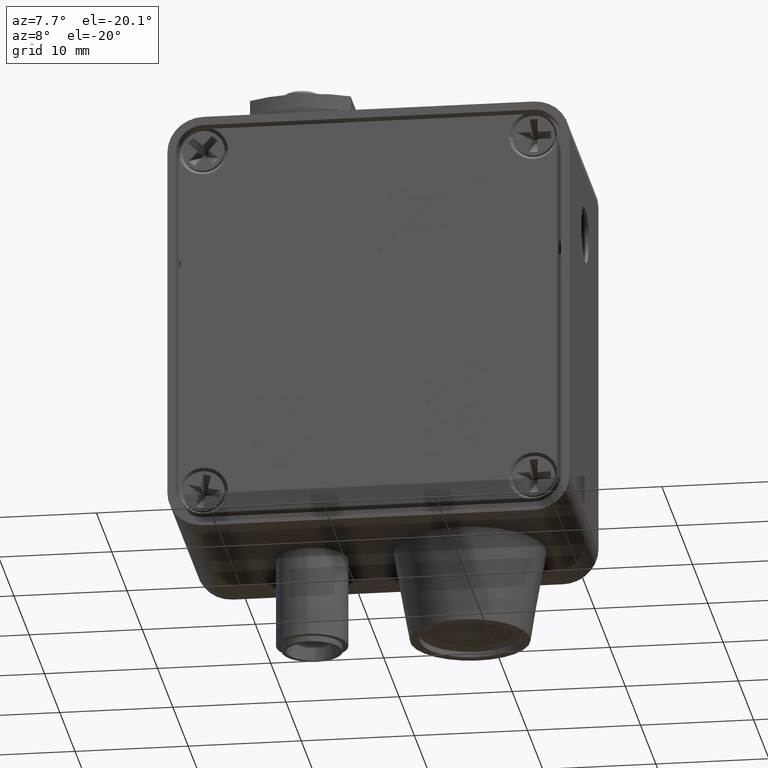
[diagram: clean part render]
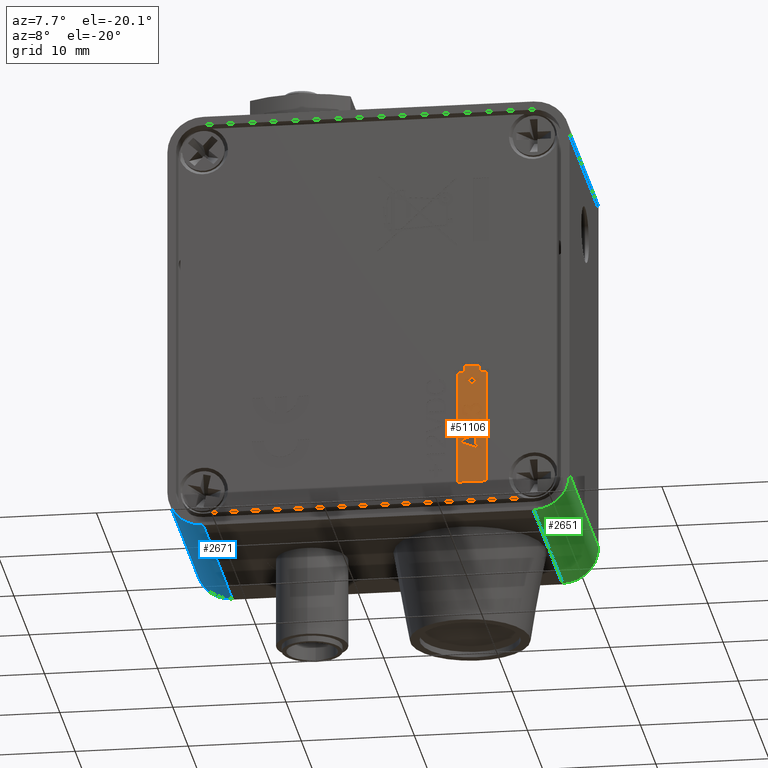
[diagram: same view with three faces highlighted in distinct colors, each labeled with its STEP entity id]
A machine part, auxiliary view with three faces highlighted in distinct colors.
Their STEP definitions:

[orange] entity #51106 — the highlighted planar face has unit normal (0, -1, 0).
#503 = CARTESIAN_POINT ( 'NONE',  ( -0.3588461538461549800, 0.06250000000109569300, -0.2811318108974358900 ) ) ;
#515 = CARTESIAN_POINT ( 'NONE',  ( -0.4494451121794883500, 0.06250000000109569300, -0.2662259615384616200 ) ) ;
#518 = CARTESIAN_POINT ( 'NONE',  ( -0.2100000000000006300, 0.06250000000109569300, -0.3200000000000002300 ) ) ;
#523 = CARTESIAN_POINT ( 'NONE',  ( -0.4405128205128217600, 0.06250000000109569300, -0.3093589743589744700 ) ) ;
#550 = CARTESIAN_POINT ( 'NONE',  ( -0.2673076923076934100, 0.06250000000109569300, -0.3174358974358975100 ) ) ;
#558 = CARTESIAN_POINT ( 'NONE',  ( -0.4270512820512832300, 0.06250000000109569300, -0.3300000000000000200 ) ) ;
#578 = CARTESIAN_POINT ( 'NONE',  ( -0.3624358974358986000, 0.06250000000109569300, -0.3119110576923076500 ) ) ;
#601 = CARTESIAN_POINT ( 'NONE',  ( -0.4272475961538473300, 0.06250000000109569300, -0.3219230769230770300 ) ) ;
#606 = CARTESIAN_POINT ( 'NONE',  ( -0.3730929487179498500, 0.06250000000109569300, -0.3219230769230768700 ) ) ;
#613 = CARTESIAN_POINT ( 'NONE',  ( -0.5191927083333346400, 0.06250000000109569300, -0.2600000000000001200 ) ) ;
#633 = CARTESIAN_POINT ( 'NONE',  ( -0.2350000000000011200, 0.06250000000109569300, -0.3200000000000002300 ) ) ;
#635 = CARTESIAN_POINT ( 'NONE',  ( -0.4503846153846165500, 0.06250000000109569300, -0.2600000000000001200 ) ) ;
#646 = CARTESIAN_POINT ( 'NONE',  ( -0.3768509615384627000, 0.06250000000109569300, -0.3012820512820512100 ) ) ;
#650 = CARTESIAN_POINT ( 'NONE',  ( -0.6350000000000004500, 0.06250000000109569300, -0.3450000000000024700 ) ) ;
#658 = CARTESIAN_POINT ( 'NONE',  ( -0.5087179487179500600, 0.06250000000000000000, -0.2600000000000001200 ) ) ;
#664 = CARTESIAN_POINT ( 'NONE',  ( -0.4914002403846166000, 0.06250000000109569300, -0.3300000000000000200 ) ) ;
#673 = CARTESIAN_POINT ( 'NONE',  ( -0.2350000000000011200, 0.06250000000109569300, -0.2700000000000001300 ) ) ;
#723 = CARTESIAN_POINT ( 'NONE',  ( -0.2673076923076934100, 0.06250000000109569300, -0.2985897435897436100 ) ) ;
#734 = CARTESIAN_POINT ( 'NONE',  ( -0.2403846153846165600, 0.06250000000109569300, -0.2985897435897436100 ) ) ;
#737 = CARTESIAN_POINT ( 'NONE',  ( -0.4046153846153858200, 0.06250000000109569300, -0.2689743589743590100 ) ) ;
#739 = CARTESIAN_POINT ( 'NONE',  ( -0.2350000000000011200, 0.06250000000109569300, -0.3450000000000025300 ) ) ;
#764 = CARTESIAN_POINT ( 'NONE',  ( -0.2861538461538473100, 0.06250000000109569300, -0.2905128205128206200 ) ) ;
#774 = CARTESIAN_POINT ( 'NONE',  ( -0.4249338942307704400, 0.06250000000109569300, -0.2819591346153847400 ) ) ;
#798 = CARTESIAN_POINT ( 'NONE',  ( -0.4709134615384627000, 0.06250000000109569300, -0.2815384615384616800 ) ) ;
#808 = CARTESIAN_POINT ( 'NONE',  ( -0.3938461538461550100, 0.06250000000109569300, -0.3120512820512820800 ) ) ;
#838 = CARTESIAN_POINT ( 'NONE',  ( -0.4494871794871806400, 0.06250000000109569300, -0.3102564102564103800 ) ) ;
#854 = CARTESIAN_POINT ( 'NONE',  ( -0.4046153846153858200, 0.06250000000109569300, -0.2600000000000001200 ) ) ;
#861 = CARTESIAN_POINT ( 'NONE',  ( -0.2861538461538473100, 0.06250000000109569300, -0.2985897435897436100 ) ) ;
#872 = CARTESIAN_POINT ( 'NONE',  ( -0.3726442307692319200, 0.06250000000109569300, -0.2671794871794872000 ) ) ;
#895 = CARTESIAN_POINT ( 'NONE',  ( -0.4629487179487191700, 0.06250000000109569300, -0.2600000000000001200 ) ) ;
#908 = CARTESIAN_POINT ( 'NONE',  ( -0.5007532051282064200, 0.06250000000109569300, -0.2815384615384616800 ) ) ;
#1025 = CARTESIAN_POINT ( 'NONE',  ( -0.3498717948717959800, 0.06250000000109569300, -0.2810616987179486700 ) ) ;
#1053 = CARTESIAN_POINT ( 'NONE',  ( -0.3733733974358985900, 0.06250000000109569300, -0.3300000000000000200 ) ) ;
#1075 = CARTESIAN_POINT ( 'NONE',  ( -0.2403846153846165600, 0.06250000000109569300, -0.2905128205128206200 ) ) ;
#1116 = CARTESIAN_POINT ( 'NONE',  ( -0.2592307692307703700, 0.06250000000109569300, -0.2905128205128206200 ) ) ;
#1121 = CARTESIAN_POINT ( 'NONE',  ( -0.3755608974358986000, 0.06250000000109569300, -0.3011838942307691900 ) ) ;
#2798 = CARTESIAN_POINT ( 'NONE',  ( -0.2673076923076934100, 0.06250000000109569300, -0.2905128205128206200 ) ) ;
#2803 = CARTESIAN_POINT ( 'NONE',  ( -0.4333052884615396500, 0.06250000000109569300, -0.2861798878205129000 ) ) ;
#2846 = CARTESIAN_POINT ( 'NONE',  ( -0.3848717948717960100, 0.06250000000109569300, -0.3111538461538461700 ) ) ;
#2873 = CARTESIAN_POINT ( 'NONE',  ( -0.2592307692307703700, 0.06250000000109569300, -0.2985897435897436100 ) ) ;
#2876 = CARTESIAN_POINT ( 'NONE',  ( -0.3719711538461549800, 0.06250000000109569300, -0.2941586538461538100 ) ) ;
#2996 = CARTESIAN_POINT ( 'NONE',  ( -0.3777764423076934700, 0.06250000000109569300, -0.2932051282051281700 ) ) ;
#3079 = CARTESIAN_POINT ( 'NONE',  ( -0.3534615384615396000, 0.06250000000109569300, -0.3122055288461537700 ) ) ;
#7258 = B_SPLINE_CURVE_WITH_KNOTS ( 'NONE', 3,
 ( #40025, #39979, #40038, #40039, #40041, #40044, #40046, #40048, #40050, #40052, #40053, #40055, #40057, #40059, #40061, #40063, #40066, #40068, #40071 ),
 .UNSPECIFIED., .F., .F.,
 ( 4, 1, 1, 1, 1, 1, 1, 1, 1, 1, 1, 1, 1, 1, 1, 1, 4 ),
 ( 0.0000000000000000000, 0.07068799821027479900, 0.1383416071740399500, 0.2033454594014849300, 0.2656683234700635800, 0.3265875501582789500, 0.3861242880926983900, 0.4448968030792007100, 0.5042045303178910300, 0.5632784548307528900, 0.6214196677827229500, 0.6802431784534261900, 0.7398263871153111200, 0.8008250712305730000, 0.8642557558278233200, 0.9306394239675688200, 1.000000000000000000 ),
 .UNSPECIFIED. ) ;
#7266 = B_SPLINE_CURVE_WITH_KNOTS ( 'NONE', 3,
 ( #40368, #40366, #40419, #40421, #40423, #40425, #40427, #40429, #40430, #40432, #40434, #40436, #40438, #40440, #40442, #40443, #40445, #40447, #40449 ),
 .UNSPECIFIED., .F., .F.,
 ( 4, 1, 1, 1, 1, 1, 1, 1, 1, 1, 1, 1, 1, 1, 1, 1, 4 ),
 ( 0.0000000000000000000, 0.06505463913602481400, 0.1272285226197141500, 0.1880101438087984600, 0.2469835454742422000, 0.3066659727845282800, 0.3657818598972602500, 0.4261710453590839000, 0.4878724760734966500, 0.5497514992996238600, 0.6112034382739596200, 0.6728455577848967400, 0.7349546921179244100, 0.7979758693229790400, 0.8625564745858543800, 0.9298171665527542600, 0.9999999999999998900 ),
 .UNSPECIFIED. ) ;
#7269 = B_SPLINE_CURVE_WITH_KNOTS ( 'NONE', 3,
 ( #40549, #40530, #40558, #40559, #40560, #40561, #40562, #40563, #40564, #40565, #40566, #40567, #40568, #40569, #40570 ),
 .UNSPECIFIED., .F., .F.,
 ( 4, 1, 1, 1, 1, 1, 1, 1, 1, 1, 1, 1, 4 ),
 ( 0.0000000000000000000, 0.1003979870776433200, 0.2039449444496930800, 0.3109740528169621700, 0.4224561943354787100, 0.4809901004231617000, 0.5431933649474934800, 0.6094612125659416600, 0.6795231862930163300, 0.7538170840239588600, 0.8316241673810499400, 0.9138042553895521200, 0.9999999999999998900 ),
 .UNSPECIFIED. ) ;
#7271 = B_SPLINE_CURVE_WITH_KNOTS ( 'NONE', 3,
 ( #40590, #40587, #40594, #40595, #40596, #40597, #40598, #40599, #40600, #40601, #40602, #40603, #40604, #40605, #40606 ),
 .UNSPECIFIED., .F., .F.,
 ( 4, 1, 1, 1, 1, 1, 1, 1, 1, 1, 1, 1, 4 ),
 ( 0.0000000000000000000, 0.1291439695827889000, 0.2547667436248105500, 0.3782483602520441100, 0.5034627163055384000, 0.5650122774638333100, 0.6249014079724627400, 0.6836621344857667400, 0.7427540136139014800, 0.8025026920590232500, 0.8652039536627028600, 0.9306959190209077600, 1.000000000000000000 ),
 .UNSPECIFIED. ) ;
#7274 = B_SPLINE_CURVE_WITH_KNOTS ( 'NONE', 3,
 ( #40672, #40663, #40676, #40677, #40678, #40679, #40680, #40681, #40682, #40683, #40684, #40685, #40686, #40687, #40688, #40689, #40690, #40691, #40692 ),
 .UNSPECIFIED., .F., .F.,
 ( 4, 1, 1, 1, 1, 1, 1, 1, 1, 1, 1, 1, 1, 1, 1, 1, 4 ),
 ( 0.0000000000000000000, 0.06350453625022091400, 0.1248067922028607600, 0.1849234681287589000, 0.2443804145998951200, 0.3037798743377915200, 0.3635961592214625400, 0.4248401249863769700, 0.4878537026835108000, 0.5515047880584241800, 0.6138531752476541500, 0.6756348551984136000, 0.7377324277930088500, 0.8004136732792576100, 0.8646560725551918300, 0.9309833332427830400, 1.000000000000000000 ),
 .UNSPECIFIED. ) ;
#7276 = B_SPLINE_CURVE_WITH_KNOTS ( 'NONE', 3,
 ( #40712, #40710, #40718, #40719, #40720, #40721, #40722, #40723, #40724, #40725, #40726, #40727, #40728, #40729, #40730, #40731, #40732, #40733, #40734 ),
 .UNSPECIFIED., .F., .F.,
 ( 4, 1, 1, 1, 1, 1, 1, 1, 1, 1, 1, 1, 1, 1, 1, 1, 4 ),
 ( 0.0000000000000000000, 0.08255396078518927000, 0.1597357900281255200, 0.2331191426939358500, 0.3016677542672446300, 0.3657572055548060100, 0.4264331607509340700, 0.4841724850757706000, 0.5395279894987188300, 0.5931262957056707700, 0.6470108735677905200, 0.7014006585895339300, 0.7565572882568629700, 0.8138678545440810600, 0.8730772030430992100, 0.9349724568179587100, 1.000000000000000000 ),
 .UNSPECIFIED. ) ;
#7289 = B_SPLINE_CURVE_WITH_KNOTS ( 'NONE', 3,
 ( #40980, #40979, #40987, #40988, #40989, #40990, #40991, #40992, #40993, #40994, #40995, #40996, #40997, #40998, #40999, #41000, #41001, #41002, #41003 ),
 .UNSPECIFIED., .F., .F.,
 ( 4, 1, 1, 1, 1, 1, 1, 1, 1, 1, 1, 1, 1, 1, 1, 1, 4 ),
 ( 0.0000000000000000000, 0.06174994828330721000, 0.1211500402704750200, 0.1793859407142496000, 0.2367966179648674000, 0.2942636170183540700, 0.3531211477700180200, 0.4132116206465808500, 0.4750008486832688600, 0.5375230809498752200, 0.6000453132164830200, 0.6624596554419315300, 0.7260040706795326500, 0.7903578941347834100, 0.8577524244976217900, 0.9272463363904389600, 1.000000000000000000 ),
 .UNSPECIFIED. ) ;
#7291 = B_SPLINE_CURVE_WITH_KNOTS ( 'NONE', 3,
 ( #41044, #41023, #41050, #41051, #41052, #41053, #41054, #41055, #41056, #41057, #41058, #41059, #41060 ),
 .UNSPECIFIED., .F., .F.,
 ( 4, 1, 1, 1, 1, 1, 1, 1, 1, 1, 4 ),
 ( 0.0000000000000000000, 0.1242120814447487700, 0.2373239094364003900, 0.3395283395232167000, 0.4312960318445582800, 0.5115054068527511400, 0.5812109484595626700, 0.6400004863247532600, 0.6878180933733948300, 0.8508973910548978100, 1.000000000000000000 ),
 .UNSPECIFIED. ) ;
#7297 = B_SPLINE_CURVE_WITH_KNOTS ( 'NONE', 3,
 ( #41759, #41758, #41784, #41785, #41786, #41787, #41788, #41790, #41792, #41794, #41795 ),
 .UNSPECIFIED., .F., .F.,
 ( 4, 1, 1, 1, 1, 1, 1, 1, 4 ),
 ( 0.0000000000000000000, 0.1219512022493420700, 0.2407868053279173500, 0.3585498723707395400, 0.4790658414002721400, 0.6015185447735353900, 0.7275505189308956200, 0.8599320866628432600, 0.9999999999999998900 ),
 .UNSPECIFIED. ) ;
#7310 = B_SPLINE_CURVE_WITH_KNOTS ( 'NONE', 3,
 ( #42117, #42116, #42124, #42125, #42127, #42129, #42131 ),
 .UNSPECIFIED., .F., .F.,
 ( 4, 1, 1, 1, 4 ),
 ( 0.0000000000000000000, 0.2526501895044240800, 0.5022501643010154300, 0.7504000252034002100, 1.000000000000000000 ),
 .UNSPECIFIED. ) ;
#7311 = B_SPLINE_CURVE_WITH_KNOTS ( 'NONE', 3,
 ( #42122, #42121, #42140, #42141, #42142, #42143, #42145, #42147, #42149, #42151, #42152, #42153, #42154, #42155, #42156, #42157, #42159, #42160, #42161 ),
 .UNSPECIFIED., .F., .F.,
 ( 4, 1, 1, 1, 1, 1, 1, 1, 1, 1, 1, 1, 1, 1, 1, 1, 4 ),
 ( 0.0000000000000000000, 0.05794114686443288500, 0.1160101600015121900, 0.1747221415238388600, 0.2342052521829446300, 0.2968623103841385200, 0.3640922896711093500, 0.4362187363142909200, 0.5137329173488078800, 0.5564459463267140700, 0.6043228965928177900, 0.6574174460759854000, 0.7157688753522287700, 0.7788540302343862600, 0.8475110023648092500, 0.9212332996991652300, 1.000000000000000000 ),
 .UNSPECIFIED. ) ;
#7316 = B_SPLINE_CURVE_WITH_KNOTS ( 'NONE', 3,
 ( #42251, #42282, #42335, #42337, #42338, #42339, #42340, #42341, #42342, #42343, #42344, #42345, #42346, #42347, #42349, #42350, #42352, #42354, #42356 ),
 .UNSPECIFIED., .F., .F.,
 ( 4, 1, 1, 1, 1, 1, 1, 1, 1, 1, 1, 1, 1, 1, 1, 1, 4 ),
 ( 0.0000000000000000000, 0.1114069722005840400, 0.2145211916453906300, 0.3094097605219015600, 0.3960776348968146900, 0.4742727739618093400, 0.5443607482092252000, 0.6064049324812097500, 0.6605656653455922500, 0.7097766937535554500, 0.7560555340500237900, 0.8007645578783259000, 0.8431644975605242500, 0.8842900859594661200, 0.9234489124930920200, 0.9623596182637241800, 1.000000000000000000 ),
 .UNSPECIFIED. ) ;
#7318 = B_SPLINE_CURVE_WITH_KNOTS ( 'NONE', 3,
 ( #42358, #42357, #42378, #42380, #42381, #42382, #42383, #42384, #42385, #42387, #42388, #42389, #42390, #42391, #42392, #42393, #42394, #42395, #42396 ),
 .UNSPECIFIED., .F., .F.,
 ( 4, 1, 1, 1, 1, 1, 1, 1, 1, 1, 1, 1, 1, 1, 1, 1, 4 ),
 ( 0.0000000000000000000, 0.07067678172478120100, 0.1374955954707309200, 0.2014770772266692400, 0.2628748693297359200, 0.3225568935781233900, 0.3809762864578220000, 0.4385150871552019900, 0.4960860063759574000, 0.5534946199614502200, 0.6117147729092998800, 0.6706367881256256600, 0.7315812838711663900, 0.7941788502708099200, 0.8594421456840259900, 0.9282061203037743600, 1.000000000000000000 ),
 .UNSPECIFIED. ) ;
#7324 = B_SPLINE_CURVE_WITH_KNOTS ( 'NONE', 3,
 ( #42512, #42524, #42549, #42550, #42552, #42553, #42554, #42555, #42556, #42557, #42558, #42559, #42560, #42561, #42562, #42564, #42565, #42567, #42569 ),
 .UNSPECIFIED., .F., .F.,
 ( 4, 1, 1, 1, 1, 1, 1, 1, 1, 1, 1, 1, 1, 1, 1, 1, 4 ),
 ( 0.0000000000000000000, 0.06945660146576315700, 0.1356488576093684800, 0.1996072199859664800, 0.2614281420011511600, 0.3220970204207960800, 0.3823803551340465600, 0.4432594092864677300, 0.5049621518609266300, 0.5668486316061064300, 0.6276243567848867100, 0.6874959659819596100, 0.7473675751790296300, 0.8081866532359618400, 0.8701418939385477900, 0.9337250934245897600, 1.000000000000000000 ),
 .UNSPECIFIED. ) ;
#7326 = B_SPLINE_CURVE_WITH_KNOTS ( 'NONE', 3,
 ( #42611, #42588, #42623, #42624, #42625, #42626, #42627 ),
 .UNSPECIFIED., .F., .F.,
 ( 4, 1, 1, 1, 4 ),
 ( 0.0000000000000000000, 0.2093977625856978900, 0.4467474999317970200, 0.7082787400881829200, 1.000000000000000000 ),
 .UNSPECIFIED. ) ;
#7328 = B_SPLINE_CURVE_WITH_KNOTS ( 'NONE', 3,
 ( #42628, #42631, #42659, #42660, #42661, #42662, #42663, #42664, #42666, #42667, #42668, #42669, #42670, #42671, #42672, #42673, #42674, #42675, #42676 ),
 .UNSPECIFIED., .F., .F.,
 ( 4, 1, 1, 1, 1, 1, 1, 1, 1, 1, 1, 1, 1, 1, 1, 1, 4 ),
 ( 0.0000000000000000000, 0.07104220885431246400, 0.1393548851463392900, 0.2049754549053387800, 0.2683538161727900800, 0.3301566144204436900, 0.3906963456467006400, 0.4508988055510684800, 0.5109694912014484100, 0.5707610330540389100, 0.6294527297938353700, 0.6884138447278013200, 0.7475706368932020200, 0.8082828334052719600, 0.8700232702590244800, 0.9338049721129118000, 1.000000000000000000 ),
 .UNSPECIFIED. ) ;
#7329 = B_SPLINE_CURVE_WITH_KNOTS ( 'NONE', 3,
 ( #42695, #42657, #42702, #42703, #42704, #42706, #42708, #42710, #42712, #42713, #42714, #42715, #42716, #42718, #42719, #42720, #42721, #42722, #42723 ),
 .UNSPECIFIED., .F., .F.,
 ( 4, 1, 1, 1, 1, 1, 1, 1, 1, 1, 1, 1, 1, 1, 1, 1, 4 ),
 ( 0.0000000000000000000, 0.06580446254848387700, 0.1288917343511515600, 0.1905469756132186800, 0.2511416007260241500, 0.3105737718235804200, 0.3700059429211377500, 0.4296127451425872900, 0.4894260755359232100, 0.5495302842116964700, 0.6104178418508747800, 0.6712359195614078200, 0.7330053478668735500, 0.7967841522549885500, 0.8618753027009692400, 0.9299173053605347400, 1.000000000000000000 ),
 .UNSPECIFIED. ) ;
#7335 = B_SPLINE_CURVE_WITH_KNOTS ( 'NONE', 3,
 ( #42873, #42876, #42900, #42901, #42902, #42903, #42904, #42905, #42906, #42908, #42909, #42910, #42911, #42912, #42913, #42914, #42915, #42916, #42917 ),
 .UNSPECIFIED., .F., .F.,
 ( 4, 1, 1, 1, 1, 1, 1, 1, 1, 1, 1, 1, 1, 1, 1, 1, 4 ),
 ( 0.0000000000000000000, 0.06705906849163614800, 0.1312849360638177800, 0.1936839294531497200, 0.2544690426430535900, 0.3147395315700047800, 0.3754454655322398400, 0.4359548907264977900, 0.4982363164308154500, 0.5605177421351356100, 0.6215735474205244000, 0.6819351712114154500, 0.7428219349666540500, 0.8042479941570502800, 0.8674565928158574100, 0.9322646656550086500, 1.000000000000000000 ),
 .UNSPECIFIED. ) ;
#7343 = B_SPLINE_CURVE_WITH_KNOTS ( 'NONE', 3,
 ( #43178, #43176, #43205, #43207, #43209, #43211, #43213, #43215, #43216, #43218, #43220, #43222, #43224, #43226, #43228 ),
 .UNSPECIFIED., .F., .F.,
 ( 4, 1, 1, 1, 1, 1, 1, 1, 1, 1, 1, 1, 4 ),
 ( 0.0000000000000000000, 0.1277971582348382500, 0.2467952527166545300, 0.3622843155839184900, 0.4776524647273060500, 0.5362368417287135500, 0.5955904355162882100, 0.6563437591396365000, 0.7190851405078759800, 0.7843491651281253600, 0.8528755346365636300, 0.9245512555166994800, 0.9999999999999998900 ),
 .UNSPECIFIED. ) ;
#7345 = B_SPLINE_CURVE_WITH_KNOTS ( 'NONE', 3,
 ( #43274, #43276, #43295, #43297, #43299, #43301, #43303, #43305, #43307, #43309, #43311, #43313, #43314, #43316, #43318, #43320, #43322, #43324, #43326 ),
 .UNSPECIFIED., .F., .F.,
 ( 4, 1, 1, 1, 1, 1, 1, 1, 1, 1, 1, 1, 1, 1, 1, 1, 4 ),
 ( 0.0000000000000000000, 0.07469906016271719900, 0.1455142091831440300, 0.2133024209091382300, 0.2785672274609347100, 0.3420354497055238000, 0.4042008078067749200, 0.4653635792336840400, 0.5268663994662192700, 0.5876075643462718200, 0.6466495451034454100, 0.7046044435732223800, 0.7621190800210117000, 0.8194488701009589000, 0.8780603438614849000, 0.9378061912751087800, 0.9999999999999998900 ),
 .UNSPECIFIED. ) ;
#7356 = B_SPLINE_CURVE_WITH_KNOTS ( 'NONE', 3,
 ( #44675, #44673, #44713, #44715, #44717, #44719, #44720, #44722, #44724, #44726, #44727, #44729, #44731, #44733, #44734, #44736, #44738, #44740, #44741 ),
 .UNSPECIFIED., .F., .F.,
 ( 4, 1, 1, 1, 1, 1, 1, 1, 1, 1, 1, 1, 1, 1, 1, 1, 4 ),
 ( 0.0000000000000000000, 0.06778605041676645500, 0.1333952342465263800, 0.1969464128107682200, 0.2588972289528095900, 0.3197980194082243900, 0.3802278156116860000, 0.4410230653179171300, 0.5028927014869230000, 0.5648239840272981600, 0.6252029334930979700, 0.6856327296965655200, 0.7460625259000291900, 0.8073608920514104800, 0.8693117081934511600, 0.9337976948254395100, 0.9999999999999998900 ),
 .UNSPECIFIED. ) ;
#7357 = B_SPLINE_CURVE_WITH_KNOTS ( 'NONE', 3,
 ( #44712, #44710, #44760, #44762, #44764, #44765, #44767, #44769, #44771, #44772, #44774, #44776, #44778, #44779, #44781 ),
 .UNSPECIFIED., .F., .F.,
 ( 4, 1, 1, 1, 1, 1, 1, 1, 1, 1, 1, 1, 4 ),
 ( 0.0000000000000000000, 0.09203692629247017800, 0.1809743534409799800, 0.2693971913494245300, 0.3573882751545084900, 0.4436191427624009400, 0.5264882114800446500, 0.6074926839602933200, 0.6880228832785010300, 0.7678968801814436400, 0.8455592219698796500, 0.9225438037773249200, 1.000000000000000000 ),
 .UNSPECIFIED. ) ;
#7358 = B_SPLINE_CURVE_WITH_KNOTS ( 'NONE', 3,
 ( #44758, #44757, #44787, #44789, #44791 ),
 .UNSPECIFIED., .F., .F.,
 ( 4, 1, 4 ),
 ( 0.0000000000000000000, 0.5660412240200541900, 1.000000000000000000 ),
 .UNSPECIFIED. ) ;
#8155 = VERTEX_POINT ( 'NONE', #503 ) ;
#8167 = VERTEX_POINT ( 'NONE', #515 ) ;
#8170 = VERTEX_POINT ( 'NONE', #518 ) ;
#8175 = VERTEX_POINT ( 'NONE', #523 ) ;
#8202 = VERTEX_POINT ( 'NONE', #550 ) ;
#8210 = VERTEX_POINT ( 'NONE', #558 ) ;
#8230 = VERTEX_POINT ( 'NONE', #578 ) ;
#8253 = VERTEX_POINT ( 'NONE', #601 ) ;
#8258 = VERTEX_POINT ( 'NONE', #606 ) ;
#8265 = VERTEX_POINT ( 'NONE', #613 ) ;
#8285 = VERTEX_POINT ( 'NONE', #633 ) ;
#8287 = VERTEX_POINT ( 'NONE', #635 ) ;
#8297 = VERTEX_POINT ( 'NONE', #646 ) ;
#8300 = VERTEX_POINT ( 'NONE', #650 ) ;
#8306 = VERTEX_POINT ( 'NONE', #658 ) ;
#8311 = VERTEX_POINT ( 'NONE', #664 ) ;
#8320 = VERTEX_POINT ( 'NONE', #673 ) ;
#8365 = VERTEX_POINT ( 'NONE', #723 ) ;
#8376 = VERTEX_POINT ( 'NONE', #734 ) ;
#8379 = VERTEX_POINT ( 'NONE', #737 ) ;
#8381 = VERTEX_POINT ( 'NONE', #739 ) ;
#8406 = VERTEX_POINT ( 'NONE', #764 ) ;
#8416 = VERTEX_POINT ( 'NONE', #774 ) ;
#8438 = VERTEX_POINT ( 'NONE', #798 ) ;
#8447 = VERTEX_POINT ( 'NONE', #808 ) ;
#8476 = VERTEX_POINT ( 'NONE', #838 ) ;
#8492 = VERTEX_POINT ( 'NONE', #854 ) ;
#8498 = VERTEX_POINT ( 'NONE', #861 ) ;
#8509 = VERTEX_POINT ( 'NONE', #872 ) ;
#8532 = VERTEX_POINT ( 'NONE', #895 ) ;
#8545 = VERTEX_POINT ( 'NONE', #908 ) ;
#8658 = VERTEX_POINT ( 'NONE', #1025 ) ;
#8686 = VERTEX_POINT ( 'NONE', #1053 ) ;
#8708 = VERTEX_POINT ( 'NONE', #1075 ) ;
#8749 = VERTEX_POINT ( 'NONE', #1116 ) ;
#8754 = VERTEX_POINT ( 'NONE', #1121 ) ;
#8776 = VERTEX_POINT ( 'NONE', #2798 ) ;
#8779 = VERTEX_POINT ( 'NONE', #2803 ) ;
#8805 = VERTEX_POINT ( 'NONE', #2846 ) ;
#8821 = VERTEX_POINT ( 'NONE', #2873 ) ;
#8823 = VERTEX_POINT ( 'NONE', #2876 ) ;
#8895 = VERTEX_POINT ( 'NONE', #2996 ) ;
#8945 = VERTEX_POINT ( 'NONE', #3079 ) ;
#28230 = ORIENTED_EDGE ( 'NONE', *, *, #91431, .T. ) ;
#28231 = ORIENTED_EDGE ( 'NONE', *, *, #91463, .T. ) ;
#35148 = CARTESIAN_POINT ( 'NONE',  ( -0.2592307692307703700, 0.06250000000109569300, -0.3174358974358975100 ) ) ;
#35227 = CARTESIAN_POINT ( 'NONE',  ( -0.3729667467948730200, 0.06250000000000000000, -0.2591025641025641000 ) ) ;
#35228 = CARTESIAN_POINT ( 'NONE',  ( -0.4388581730769243200, 0.06249999999999999300, -0.2689743589743590100 ) ) ;
#35232 = CARTESIAN_POINT ( 'NONE',  ( -0.3630108173076934700, 0.06250000000109569300, -0.2983233173076922900 ) ) ;
#35239 = CARTESIAN_POINT ( 'NONE',  ( -0.4055128205128217300, 0.06250000000109569300, -0.3106770833333334400 ) ) ;
#35244 = CARTESIAN_POINT ( 'NONE',  ( -0.4144871794871806700, 0.06250000000109569300, -0.3105929487179487900 ) ) ;
#35250 = CARTESIAN_POINT ( 'NONE',  ( -0.2350000000000011200, 0.06250000000109569300, -0.2449999999999978000 ) ) ;
#35258 = CARTESIAN_POINT ( 'NONE',  ( -0.2673076923076934100, 0.06250000000109569300, -0.2716666666666667200 ) ) ;
#35282 = CARTESIAN_POINT ( 'NONE',  ( -0.4524739583333345900, 0.06250000000109569300, -0.2600000000000001200 ) ) ;
#35295 = CARTESIAN_POINT ( 'NONE',  ( -0.6350000000000004500, 0.06250000000109569300, -0.2449999999999978000 ) ) ;
#35321 = CARTESIAN_POINT ( 'NONE',  ( -0.3947435897435909200, 0.06250000000109569300, -0.2788461538461538500 ) ) ;
#35335 = CARTESIAN_POINT ( 'NONE',  ( -0.2592307692307703700, 0.06250000000000000000, -0.2716666666666667200 ) ) ;
#35338 = CARTESIAN_POINT ( 'NONE',  ( -0.3857692307692319200, 0.06250000000109569300, -0.2797435897435897600 ) ) ;
#35365 = CARTESIAN_POINT ( 'NONE',  ( -0.2100000000000006300, 0.06250000000000000000, -0.2700000000000001300 ) ) ;
#35396 = CARTESIAN_POINT ( 'NONE',  ( -0.4802664262820525200, 0.06250000000109569300, -0.3300000000000000200 ) ) ;
#36746 = ORIENTED_EDGE ( 'NONE', *, *, #91852, .T. ) ;
#36747 = ORIENTED_EDGE ( 'NONE', *, *, #91666, .T. ) ;
#36748 = ORIENTED_EDGE ( 'NONE', *, *, #91712, .T. ) ;
#36750 = ORIENTED_EDGE ( 'NONE', *, *, #91851, .T. ) ;
#36752 = ORIENTED_EDGE ( 'NONE', *, *, #91364, .T. ) ;
#36753 = ORIENTED_EDGE ( 'NONE', *, *, #91370, .T. ) ;
#36754 = ORIENTED_EDGE ( 'NONE', *, *, #91355, .T. ) ;
#36755 = ORIENTED_EDGE ( 'NONE', *, *, #91391, .T. ) ;
#36758 = ORIENTED_EDGE ( 'NONE', *, *, #91847, .T. ) ;
#36759 = ORIENTED_EDGE ( 'NONE', *, *, #91733, .T. ) ;
#36760 = ORIENTED_EDGE ( 'NONE', *, *, #91379, .T. ) ;
#36761 = ORIENTED_EDGE ( 'NONE', *, *, #91358, .T. ) ;
#36762 = ORIENTED_EDGE ( 'NONE', *, *, #91442, .T. ) ;
#36763 = ORIENTED_EDGE ( 'NONE', *, *, #91748, .T. ) ;
#36764 = ORIENTED_EDGE ( 'NONE', *, *, #91587, .T. ) ;
#36765 = ORIENTED_EDGE ( 'NONE', *, *, #91700, .T. ) ;
#36766 = ORIENTED_EDGE ( 'NONE', *, *, #91458, .T. ) ;
#36768 = ORIENTED_EDGE ( 'NONE', *, *, #91495, .T. ) ;
#36769 = ORIENTED_EDGE ( 'NONE', *, *, #91526, .T. ) ;
#36770 = ORIENTED_EDGE ( 'NONE', *, *, #91583, .T. ) ;
#36771 = ORIENTED_EDGE ( 'NONE', *, *, #91786, .T. ) ;
#36772 = ORIENTED_EDGE ( 'NONE', *, *, #91389, .T. ) ;
#36773 = ORIENTED_EDGE ( 'NONE', *, *, #91624, .T. ) ;
#36774 = ORIENTED_EDGE ( 'NONE', *, *, #91599, .T. ) ;
#36775 = ORIENTED_EDGE ( 'NONE', *, *, #91688, .T. ) ;
#36776 = ORIENTED_EDGE ( 'NONE', *, *, #91548, .T. ) ;
#36777 = ORIENTED_EDGE ( 'NONE', *, *, #91654, .T. ) ;
#36778 = ORIENTED_EDGE ( 'NONE', *, *, #91663, .T. ) ;
#36779 = ORIENTED_EDGE ( 'NONE', *, *, #91518, .T. ) ;
#36780 = ORIENTED_EDGE ( 'NONE', *, *, #91711, .T. ) ;
#36783 = ORIENTED_EDGE ( 'NONE', *, *, #91703, .T. ) ;
#36784 = ORIENTED_EDGE ( 'NONE', *, *, #91732, .T. ) ;
#36785 = ORIENTED_EDGE ( 'NONE', *, *, #91468, .T. ) ;
#37760 = CARTESIAN_POINT ( 'NONE',  ( -0.2673076923076934100, 0.06250000000109569300, -0.3174358974358975100 ) ) ;
#37783 = DIRECTION ( 'NONE',  ( 1.000000000000000000, 0.0000000000000000000, 0.0000000000000000000 ) ) ;
#37792 = CARTESIAN_POINT ( 'NONE',  ( -0.5087179487179499500, 0.06250000000109569300, -0.2600000000000001200 ) ) ;
#37799 = DIRECTION ( 'NONE',  ( -1.000000000000000000, 0.0000000000000000000, 0.0000000000000000000 ) ) ;
#37804 = CARTESIAN_POINT ( 'NONE',  ( -0.2100000000000006300, 0.06250000000109569300, -0.2700000000000001300 ) ) ;
#37806 = DIRECTION ( 'NONE',  ( 1.000000000000000000, -0.0000000000000000000, -0.0000000000000000000 ) ) ;
#37810 = CARTESIAN_POINT ( 'NONE',  ( -0.5191927083333346400, 0.06250000000109569300, -0.2600000000000001200 ) ) ;
#37817 = DIRECTION ( 'NONE',  ( 0.3690140269754877400, 0.0000000000000000000, -0.9294238257626784600 ) ) ;
#37841 = CARTESIAN_POINT ( 'NONE',  ( -0.5007532051282064200, 0.06250000000109569300, -0.2815384615384616800 ) ) ;
#37857 = DIRECTION ( 'NONE',  ( -0.3468370040950322600, 0.0000000000000000000, 0.9379254195245923000 ) ) ;
#38154 = LINE ( 'NONE', #37760, #38167 ) ;
#38167 = VECTOR ( 'NONE', #37783, 39.37007874015748100 ) ;
#38176 = LINE ( 'NONE', #37792, #38184 ) ;
#38184 = VECTOR ( 'NONE', #37799, 39.37007874015748100 ) ;
#38187 = LINE ( 'NONE', #37804, #38190 ) ;
#38190 = VECTOR ( 'NONE', #37806, 39.37007874015748100 ) ;
#38191 = LINE ( 'NONE', #37810, #38201 ) ;
#38201 = VECTOR ( 'NONE', #37817, 39.37007874015748900 ) ;
#38205 = LINE ( 'NONE', #37841, #38208 ) ;
#38208 = VECTOR ( 'NONE', #37857, 39.37007874015748100 ) ;
#38215 = LINE ( 'NONE', #39312, #38224 ) ;
#38219 = LINE ( 'NONE', #39267, #38226 ) ;
#38224 = VECTOR ( 'NONE', #39315, 39.37007874015748900 ) ;
#38226 = VECTOR ( 'NONE', #39317, 39.37007874015748100 ) ;
#38237 = LINE ( 'NONE', #39383, #38240 ) ;
#38240 = VECTOR ( 'NONE', #39404, 39.37007874015748100 ) ;
#38241 = LINE ( 'NONE', #39432, #38242 ) ;
#38242 = VECTOR ( 'NONE', #39434, 39.37007874015748900 ) ;
#38303 = LINE ( 'NONE', #39924, #38313 ) ;
#38313 = VECTOR ( 'NONE', #39975, 39.37007874015748100 ) ;
#38324 = LINE ( 'NONE', #40125, #38331 ) ;
#38331 = VECTOR ( 'NONE', #40137, 39.37007874015748100 ) ;
#38336 = LINE ( 'NONE', #40195, #38344 ) ;
#38344 = VECTOR ( 'NONE', #40210, 39.37007874015748100 ) ;
#38357 = LINE ( 'NONE', #40249, #38368 ) ;
#38359 = LINE ( 'NONE', #40230, #38361 ) ;
#38361 = VECTOR ( 'NONE', #40226, 39.37007874015748100 ) ;
#38368 = VECTOR ( 'NONE', #40290, 39.37007874015748100 ) ;
#38371 = LINE ( 'NONE', #40360, #38376 ) ;
#38376 = VECTOR ( 'NONE', #40363, 39.37007874015748100 ) ;
#38378 = LINE ( 'NONE', #40401, #38380 ) ;
#38380 = VECTOR ( 'NONE', #40404, 39.37007874015748100 ) ;
#38462 = LINE ( 'NONE', #40650, #38463 ) ;
#38463 = VECTOR ( 'NONE', #40651, 39.37007874015748100 ) ;
#38527 = LINE ( 'NONE', #40761, #38530 ) ;
#38530 = VECTOR ( 'NONE', #40762, 39.37007874015748100 ) ;
#38545 = LINE ( 'NONE', #40825, #38549 ) ;
#38549 = VECTOR ( 'NONE', #40826, 39.37007874015748900 ) ;
#38573 = LINE ( 'NONE', #40930, #38574 ) ;
#38574 = VECTOR ( 'NONE', #40931, 39.37007874015748100 ) ;
#38593 = LINE ( 'NONE', #41004, #38596 ) ;
#38596 = VECTOR ( 'NONE', #41005, 39.37007874015748100 ) ;
#38597 = LINE ( 'NONE', #40986, #38599 ) ;
#38599 = VECTOR ( 'NONE', #40985, 39.37007874015748100 ) ;
#38610 = LINE ( 'NONE', #41019, #38613 ) ;
#38613 = VECTOR ( 'NONE', #41020, 39.37007874015748100 ) ;
#38617 = LINE ( 'NONE', #41025, #38620 ) ;
#38620 = VECTOR ( 'NONE', #41045, 39.37007874015748100 ) ;
#38659 = LINE ( 'NONE', #42050, #38670 ) ;
#38670 = VECTOR ( 'NONE', #42051, 39.37007874015748100 ) ;
#38695 = LINE ( 'NONE', #42203, #38708 ) ;
#38708 = VECTOR ( 'NONE', #42235, 39.37007874015748100 ) ;
#38716 = LINE ( 'NONE', #42258, #38722 ) ;
#38722 = VECTOR ( 'NONE', #42259, 39.37007874015748100 ) ;
#38724 = LINE ( 'NONE', #42265, #38727 ) ;
#38727 = VECTOR ( 'NONE', #42267, 39.37007874015748100 ) ;
#38741 = LINE ( 'NONE', #42314, #38747 ) ;
#38747 = VECTOR ( 'NONE', #42315, 39.37007874015748100 ) ;
#38750 = LINE ( 'NONE', #42321, #38754 ) ;
#38754 = VECTOR ( 'NONE', #42322, 39.37007874015748100 ) ;
#38759 = LINE ( 'NONE', #42402, #38766 ) ;
#38766 = VECTOR ( 'NONE', #42404, 39.37007874015748100 ) ;
#38831 = LINE ( 'NONE', #42724, #38833 ) ;
#38833 = VECTOR ( 'NONE', #42725, 39.37007874015748900 ) ;
#38872 = LINE ( 'NONE', #42818, #38875 ) ;
#38874 = LINE ( 'NONE', #42821, #38877 ) ;
#38875 = VECTOR ( 'NONE', #42820, 39.37007874015748100 ) ;
#38877 = VECTOR ( 'NONE', #42822, 39.37007874015748100 ) ;
#38988 = LINE ( 'NONE', #43285, #38991 ) ;
#38991 = VECTOR ( 'NONE', #43288, 39.37007874015748100 ) ;
#39267 = CARTESIAN_POINT ( 'NONE',  ( -0.4046153846153858200, 0.06250000000109569300, -0.2600000000000001200 ) ) ;
#39312 = CARTESIAN_POINT ( 'NONE',  ( -0.3848717948717960100, 0.06250000000109569300, -0.3111538461538461700 ) ) ;
#39315 = DIRECTION ( 'NONE',  ( -0.9950371902099890400, 0.0000000000000000000, -0.09950371902099966500 ) ) ;
#39317 = DIRECTION ( 'NONE',  ( -1.000000000000000000, 0.0000000000000000000, 0.0000000000000000000 ) ) ;
#39383 = CARTESIAN_POINT ( 'NONE',  ( -0.2350000000000011200, 0.06250000000109569300, -0.3450000000000025300 ) ) ;
#39404 = DIRECTION ( 'NONE',  ( -0.0000000000000000000, -0.0000000000000000000, -1.000000000000000000 ) ) ;
#39432 = CARTESIAN_POINT ( 'NONE',  ( -0.3777764423076934700, 0.06250000000109569300, -0.2932051282051281700 ) ) ;
#39434 = DIRECTION ( 'NONE',  ( 0.1138384583614883700, 0.0000000000000000000, -0.9934992729730000000 ) ) ;
#39924 = CARTESIAN_POINT ( 'NONE',  ( -0.2100000000000006300, 0.06250000000109569300, -0.3200000000000002300 ) ) ;
#39975 = DIRECTION ( 'NONE',  ( -0.0000000000000000000, -0.0000000000000000000, -1.000000000000000000 ) ) ;
#39979 = CARTESIAN_POINT ( 'NONE',  ( -0.4277341534239064700, 0.06250000000109567900, -0.3219118742448735000 ) ) ;
#40025 = CARTESIAN_POINT ( 'NONE',  ( -0.4272475961538473300, 0.06250000000109569300, -0.3219230769230770300 ) ) ;
#40038 = CARTESIAN_POINT ( 'NONE',  ( -0.4286863817572363300, 0.06250000000109570700, -0.3218899497803740000 ) ) ;
#40039 = CARTESIAN_POINT ( 'NONE',  ( -0.4300785070283594200, 0.06250000000109567900, -0.3217311550759728300 ) ) ;
#40041 = CARTESIAN_POINT ( 'NONE',  ( -0.4313992531313536300, 0.06250000000109569300, -0.3214865213230324000 ) ) ;
#40044 = CARTESIAN_POINT ( 'NONE',  ( -0.4326451476622050800, 0.06250000000109569300, -0.3211208867049326600 ) ) ;
#40046 = CARTESIAN_POINT ( 'NONE',  ( -0.4338072818180639900, 0.06250000000109570700, -0.3206359206702460400 ) ) ;
#40048 = CARTESIAN_POINT ( 'NONE',  ( -0.4349120793363196500, 0.06250000000109567900, -0.3200832240258115700 ) ) ;
#40050 = CARTESIAN_POINT ( 'NONE',  ( -0.4359302068719587700, 0.06250000000109567900, -0.3194004824512359800 ) ) ;
#40052 = CARTESIAN_POINT ( 'NONE',  ( -0.4368628521706440200, 0.06250000000109570700, -0.3186133976136213400 ) ) ;
#40053 = CARTESIAN_POINT ( 'NONE',  ( -0.4377261195795453800, 0.06250000000109569300, -0.3177542650416985100 ) ) ;
#40055 = CARTESIAN_POINT ( 'NONE',  ( -0.4384548801158024700, 0.06250000000109572100, -0.3167830334499451300 ) ) ;
#40057 = CARTESIAN_POINT ( 'NONE',  ( -0.4390968333330715900, 0.06250000000109567900, -0.3157481808518544100 ) ) ;
#40059 = CARTESIAN_POINT ( 'NONE',  ( -0.4395922511369165800, 0.06250000000109569300, -0.3146139996349785500 ) ) ;
#40061 = CARTESIAN_POINT ( 'NONE',  ( -0.4400064842821665400, 0.06250000000109567900, -0.3134159403857662600 ) ) ;
#40063 = CARTESIAN_POINT ( 'NONE',  ( -0.4403017590316515300, 0.06250000000109569300, -0.3121334444996232700 ) ) ;
#40066 = CARTESIAN_POINT ( 'NONE',  ( -0.4404637738861931200, 0.06250000000109569300, -0.3107699858598200700 ) ) ;
#40068 = CARTESIAN_POINT ( 'NONE',  ( -0.4404962343483814800, 0.06250000000109569300, -0.3098361380374751200 ) ) ;
#40071 = CARTESIAN_POINT ( 'NONE',  ( -0.4405128205128217600, 0.06250000000109569300, -0.3093589743589744700 ) ) ;
#40125 = CARTESIAN_POINT ( 'NONE',  ( -0.4629487179487191700, 0.06250000000109569300, -0.2600000000000001200 ) ) ;
#40137 = DIRECTION ( 'NONE',  ( -0.3468370040950296600, 0.0000000000000000000, -0.9379254195245933000 ) ) ;
#40195 = CARTESIAN_POINT ( 'NONE',  ( -0.4046153846153858200, 0.06250000000109569300, -0.2689743589743590100 ) ) ;
#40210 = DIRECTION ( 'NONE',  ( 0.0000000000000000000, 0.0000000000000000000, 1.000000000000000000 ) ) ;
#40226 = DIRECTION ( 'NONE',  ( -1.000000000000000000, 0.0000000000000000000, 0.0000000000000000000 ) ) ;
#40230 = CARTESIAN_POINT ( 'NONE',  ( -0.2673076923076934100, 0.06250000000109569300, -0.2905128205128206200 ) ) ;
#40249 = CARTESIAN_POINT ( 'NONE',  ( -0.2403846153846165600, 0.06250000000109569300, -0.2905128205128206200 ) ) ;
#40290 = DIRECTION ( 'NONE',  ( -1.000000000000000000, 0.0000000000000000000, 0.0000000000000000000 ) ) ;
#40360 = CARTESIAN_POINT ( 'NONE',  ( -0.6350000000000004500, 0.06250000000109569300, -0.2449999999999978000 ) ) ;
#40363 = DIRECTION ( 'NONE',  ( 1.000000000000000000, 0.0000000000000000000, 0.0000000000000000000 ) ) ;
#40366 = CARTESIAN_POINT ( 'NONE',  ( -0.3624425211750051400, 0.06250000000109570700, -0.3122667726456880300 ) ) ;
#40368 = CARTESIAN_POINT ( 'NONE',  ( -0.3624358974358986000, 0.06250000000109569300, -0.3119110576923076500 ) ) ;
#40401 = CARTESIAN_POINT ( 'NONE',  ( -0.2592307692307703700, 0.06250000000109569300, -0.2905128205128206200 ) ) ;
#40404 = DIRECTION ( 'NONE',  ( 0.0000000000000000000, 0.0000000000000000000, 1.000000000000000000 ) ) ;
#40419 = CARTESIAN_POINT ( 'NONE',  ( -0.3624554753401796300, 0.06250000000109569300, -0.3129624507494077100 ) ) ;
#40421 = CARTESIAN_POINT ( 'NONE',  ( -0.3626000725185271600, 0.06250000000109570700, -0.3139823416975103300 ) ) ;
#40423 = CARTESIAN_POINT ( 'NONE',  ( -0.3628386322462473500, 0.06250000000109569300, -0.3149488976040738000 ) ) ;
#40425 = CARTESIAN_POINT ( 'NONE',  ( -0.3631644716181218200, 0.06250000000109569300, -0.3158755884668743000 ) ) ;
#40427 = CARTESIAN_POINT ( 'NONE',  ( -0.3635837363713427300, 0.06250000000109570700, -0.3167539978918657000 ) ) ;
#40429 = CARTESIAN_POINT ( 'NONE',  ( -0.3640941131434022900, 0.06250000000109567900, -0.3175915981161540600 ) ) ;
#40430 = CARTESIAN_POINT ( 'NONE',  ( -0.3646974938280441200, 0.06250000000109572100, -0.3183796175583280000 ) ) ;
#40432 = CARTESIAN_POINT ( 'NONE',  ( -0.3653988123933047900, 0.06250000000109570700, -0.3191024640038746500 ) ) ;
#40434 = CARTESIAN_POINT ( 'NONE',  ( -0.3661673593676015300, 0.06250000000109569300, -0.3197620874212144200 ) ) ;
#40436 = CARTESIAN_POINT ( 'NONE',  ( -0.3669997344467525500, 0.06250000000109570700, -0.3203380256712749500 ) ) ;
#40438 = CARTESIAN_POINT ( 'NONE',  ( -0.3678834499525766000, 0.06250000000109566500, -0.3208367180653620700 ) ) ;
#40440 = CARTESIAN_POINT ( 'NONE',  ( -0.3688318530619941700, 0.06250000000109572100, -0.3212170295921884000 ) ) ;
#40442 = CARTESIAN_POINT ( 'NONE',  ( -0.3698130625740088700, 0.06250000000109567900, -0.3215587723923379900 ) ) ;
#40443 = CARTESIAN_POINT ( 'NONE',  ( -0.3708628729387185600, 0.06250000000109569300, -0.3217500602885055600 ) ) ;
#40445 = CARTESIAN_POINT ( 'NONE',  ( -0.3719571726901373400, 0.06250000000109570700, -0.3219059470772684400 ) ) ;
#40447 = CARTESIAN_POINT ( 'NONE',  ( -0.3727090283899602800, 0.06250000000109570700, -0.3219172866124345200 ) ) ;
#40449 = CARTESIAN_POINT ( 'NONE',  ( -0.3730929487179498500, 0.06250000000109569300, -0.3219230769230768700 ) ) ;
#40530 = CARTESIAN_POINT ( 'NONE',  ( -0.4491486630779242300, 0.06250000000109567900, -0.2670463194875067900 ) ) ;
#40549 = CARTESIAN_POINT ( 'NONE',  ( -0.4494451121794883500, 0.06250000000109569300, -0.2662259615384616200 ) ) ;
#40558 = CARTESIAN_POINT ( 'NONE',  ( -0.4485464667858419800, 0.06250000000109566500, -0.2687127658099562900 ) ) ;
#40559 = CARTESIAN_POINT ( 'NONE',  ( -0.4473126616753305100, 0.06250000000109572100, -0.2711205522224712800 ) ) ;
#40560 = CARTESIAN_POINT ( 'NONE',  ( -0.4458653803788668000, 0.06250000000109570700, -0.2735138025144257500 ) ) ;
#40561 = CARTESIAN_POINT ( 'NONE',  ( -0.4444617180843453100, 0.06250000000109566500, -0.2754712318576472700 ) ) ;
#40562 = CARTESIAN_POINT ( 'NONE',  ( -0.4431746200416094600, 0.06250000000109570700, -0.2770229267831053100 ) ) ;
#40563 = CARTESIAN_POINT ( 'NONE',  ( -0.4421127419749343300, 0.06250000000109570700, -0.2782513073321770700 ) ) ;
#40564 = CARTESIAN_POINT ( 'NONE',  ( -0.4409167064494859400, 0.06250000000109567900, -0.2794930260047415200 ) ) ;
#40565 = CARTESIAN_POINT ( 'NONE',  ( -0.4396081421881127800, 0.06250000000109569300, -0.2807701210429707800 ) ) ;
#40566 = CARTESIAN_POINT ( 'NONE',  ( -0.4381950416438542000, 0.06250000000109569300, -0.2820826961936159800 ) ) ;
#40567 = CARTESIAN_POINT ( 'NONE',  ( -0.4366774449956469800, 0.06250000000109567900, -0.2834368593772139700 ) ) ;
#40568 = CARTESIAN_POINT ( 'NONE',  ( -0.4350368600281435100, 0.06250000000109569300, -0.2848068744077124100 ) ) ;
#40569 = CARTESIAN_POINT ( 'NONE',  ( -0.4338915836880299400, 0.06250000000109569300, -0.2857149972983089000 ) ) ;
#40570 = CARTESIAN_POINT ( 'NONE',  ( -0.4333052884615396500, 0.06250000000109569300, -0.2861798878205129000 ) ) ;
#40587 = CARTESIAN_POINT ( 'NONE',  ( -0.3747406426617799200, 0.06250000000109569300, -0.3012167987556146900 ) ) ;
#40590 = CARTESIAN_POINT ( 'NONE',  ( -0.3755608974358986000, 0.06250000000109569300, -0.3011838942307691900 ) ) ;
#40594 = CARTESIAN_POINT ( 'NONE',  ( -0.3731224979011688600, 0.06250000000109569300, -0.3012817106417253200 ) ) ;
#40595 = CARTESIAN_POINT ( 'NONE',  ( -0.3707595723132649500, 0.06250000000109569300, -0.3017799713644852000 ) ) ;
#40596 = CARTESIAN_POINT ( 'NONE',  ( -0.3685336237829674500, 0.06250000000109567900, -0.3026284996910678600 ) ) ;
#40597 = CARTESIAN_POINT ( 'NONE',  ( -0.3667887586931606900, 0.06250000000109569300, -0.3035630383472361400 ) ) ;
#40598 = CARTESIAN_POINT ( 'NONE',  ( -0.3655298260911474800, 0.06250000000109569300, -0.3044978779556135100 ) ) ;
#40599 = CARTESIAN_POINT ( 'NONE',  ( -0.3646880856531993200, 0.06250000000109570700, -0.3052794141175725900 ) ) ;
#40600 = CARTESIAN_POINT ( 'NONE',  ( -0.3640031578970196500, 0.06250000000109570700, -0.3061807181143088600 ) ) ;
#40601 = CARTESIAN_POINT ( 'NONE',  ( -0.3634157543780270300, 0.06250000000109570700, -0.3071471725423677900 ) ) ;
#40602 = CARTESIAN_POINT ( 'NONE',  ( -0.3629857597640077600, 0.06250000000109569300, -0.3082206645435300900 ) ) ;
#40603 = CARTESIAN_POINT ( 'NONE',  ( -0.3626570570167982900, 0.06250000000109570700, -0.3093702246702195200 ) ) ;
#40604 = CARTESIAN_POINT ( 'NONE',  ( -0.3624814180434715600, 0.06250000000109570700, -0.3106157058805748000 ) ) ;
#40605 = CARTESIAN_POINT ( 'NONE',  ( -0.3624513543781108800, 0.06250000000109570700, -0.3114712090354884200 ) ) ;
#40606 = CARTESIAN_POINT ( 'NONE',  ( -0.3624358974358986000, 0.06250000000109569300, -0.3119110576923076500 ) ) ;
#40650 = CARTESIAN_POINT ( 'NONE',  ( -0.2592307692307703700, 0.06250000000109569300, -0.2985897435897436100 ) ) ;
#40651 = DIRECTION ( 'NONE',  ( 1.000000000000000000, 0.0000000000000000000, 0.0000000000000000000 ) ) ;
#40663 = CARTESIAN_POINT ( 'NONE',  ( -0.3498888775843487200, 0.06250000000109570700, -0.2803080709986255900 ) ) ;
#40672 = CARTESIAN_POINT ( 'NONE',  ( -0.3498717948717959800, 0.06250000000109569300, -0.2810616987179486700 ) ) ;
#40676 = CARTESIAN_POINT ( 'NONE',  ( -0.3499224505963211000, 0.06250000000109570700, -0.2788269506926168700 ) ) ;
#40677 = CARTESIAN_POINT ( 'NONE',  ( -0.3502406528494715300, 0.06250000000109570700, -0.2766511271209017300 ) ) ;
#40678 = CARTESIAN_POINT ( 'NONE',  ( -0.3507608304503014300, 0.06250000000109570700, -0.2745664888665412300 ) ) ;
#40679 = CARTESIAN_POINT ( 'NONE',  ( -0.3514801118312418400, 0.06250000000109567900, -0.2725655160325915500 ) ) ;
#40680 = CARTESIAN_POINT ( 'NONE',  ( -0.3523908804881620800, 0.06250000000109570700, -0.2706475078287694000 ) ) ;
#40681 = CARTESIAN_POINT ( 'NONE',  ( -0.3535249160008039300, 0.06250000000109569300, -0.2688267252596517900 ) ) ;
#40682 = CARTESIAN_POINT ( 'NONE',  ( -0.3548668169597816700, 0.06250000000109567900, -0.2671005746875276300 ) ) ;
#40683 = CARTESIAN_POINT ( 'NONE',  ( -0.3563853778318231100, 0.06250000000109569300, -0.2654645247234269100 ) ) ;
#40684 = CARTESIAN_POINT ( 'NONE',  ( -0.3580697754843003000, 0.06250000000109567900, -0.2639799639952047900 ) ) ;
#40685 = CARTESIAN_POINT ( 'NONE',  ( -0.3598692223694666100, 0.06250000000109570700, -0.2626607835935865800 ) ) ;
#40686 = CARTESIAN_POINT ( 'NONE',  ( -0.3617916466197695400, 0.06250000000109570700, -0.2615636533605069100 ) ) ;
#40687 = CARTESIAN_POINT ( 'NONE',  ( -0.3638174239824842300, 0.06250000000109567900, -0.2606646322828809500 ) ) ;
#40688 = CARTESIAN_POINT ( 'NONE',  ( -0.3659496340409009700, 0.06250000000109570700, -0.2599597371689479900 ) ) ;
#40689 = CARTESIAN_POINT ( 'NONE',  ( -0.3681887553939790500, 0.06250000000109569300, -0.2594540816986173900 ) ) ;
#40690 = CARTESIAN_POINT ( 'NONE',  ( -0.3705421668877945100, 0.06250000000109567900, -0.2591569903492426700 ) ) ;
#40691 = CARTESIAN_POINT ( 'NONE',  ( -0.3721479175869893400, 0.06250000000109567900, -0.2591209449364255700 ) ) ;
#40692 = CARTESIAN_POINT ( 'NONE',  ( -0.3729667467948730200, 0.06250000000000000000, -0.2591025641025641000 ) ) ;
#40710 = CARTESIAN_POINT ( 'NONE',  ( -0.3856493531459679300, 0.06250000000109570700, -0.2792044666961600000 ) ) ;
#40712 = CARTESIAN_POINT ( 'NONE',  ( -0.3857692307692319200, 0.06250000000109569300, -0.2797435897435897600 ) ) ;
#40718 = CARTESIAN_POINT ( 'NONE',  ( -0.3854173988378203900, 0.06250000000109569300, -0.2781613035930879900 ) ) ;
#40719 = CARTESIAN_POINT ( 'NONE',  ( -0.3849752172523555100, 0.06250000000109566500, -0.2766650733788423900 ) ) ;
#40720 = CARTESIAN_POINT ( 'NONE',  ( -0.3844926848412579300, 0.06250000000109572100, -0.2752805420038210700 ) ) ;
#40721 = CARTESIAN_POINT ( 'NONE',  ( -0.3839472530216441200, 0.06250000000109566500, -0.2740135875042012400 ) ) ;
#40722 = CARTESIAN_POINT ( 'NONE',  ( -0.3833417252851074000, 0.06250000000109570700, -0.2728696642638381300 ) ) ;
#40723 = CARTESIAN_POINT ( 'NONE',  ( -0.3826828627429798600, 0.06250000000109569300, -0.2718401990893254400 ) ) ;
#40724 = CARTESIAN_POINT ( 'NONE',  ( -0.3819660407301705400, 0.06250000000109570700, -0.2709231673335919000 ) ) ;
#40725 = CARTESIAN_POINT ( 'NONE',  ( -0.3811930190141739100, 0.06250000000109567900, -0.2701163778091609800 ) ) ;
#40726 = CARTESIAN_POINT ( 'NONE',  ( -0.3803510327384295200, 0.06250000000109570700, -0.2694227706867849400 ) ) ;
#40727 = CARTESIAN_POINT ( 'NONE',  ( -0.3794536891145675100, 0.06250000000109569300, -0.2688126715106702900 ) ) ;
#40728 = CARTESIAN_POINT ( 'NONE',  ( -0.3784783674860874300, 0.06250000000109567900, -0.2683158992592034100 ) ) ;
#40729 = CARTESIAN_POINT ( 'NONE',  ( -0.3774493595960629600, 0.06250000000109572100, -0.2678772782703157700 ) ) ;
#40730 = CARTESIAN_POINT ( 'NONE',  ( -0.3763353082916420200, 0.06250000000109567900, -0.2675891811879596000 ) ) ;
#40731 = CARTESIAN_POINT ( 'NONE',  ( -0.3751681855077019200, 0.06250000000109567900, -0.2673390985451155100 ) ) ;
#40732 = CARTESIAN_POINT ( 'NONE',  ( -0.3739283082824573200, 0.06250000000109570700, -0.2671998230760661000 ) ) ;
#40733 = CARTESIAN_POINT ( 'NONE',  ( -0.3730792412301663400, 0.06250000000109569300, -0.2671863764269454800 ) ) ;
#40734 = CARTESIAN_POINT ( 'NONE',  ( -0.3726442307692319200, 0.06250000000109569300, -0.2671794871794872000 ) ) ;
#40761 = CARTESIAN_POINT ( 'NONE',  ( -0.2861538461538473100, 0.06250000000109569300, -0.2985897435897436100 ) ) ;
#40762 = DIRECTION ( 'NONE',  ( 1.000000000000000000, 0.0000000000000000000, 0.0000000000000000000 ) ) ;
#40825 = CARTESIAN_POINT ( 'NONE',  ( -0.3947435897435909200, 0.06250000000109569300, -0.2788461538461538500 ) ) ;
#40826 = DIRECTION ( 'NONE',  ( 0.9950371902099890400, 0.0000000000000000000, -0.09950371902099966500 ) ) ;
#40930 = CARTESIAN_POINT ( 'NONE',  ( -0.4405128205128217600, 0.06250000000109569300, -0.3093589743589744700 ) ) ;
#40931 = DIRECTION ( 'NONE',  ( -0.9950371902099890400, 0.0000000000000000000, -0.09950371902100041400 ) ) ;
#40979 = CARTESIAN_POINT ( 'NONE',  ( -0.4144969223413900200, 0.06250000000109569300, -0.3109863541949960400 ) ) ;
#40980 = CARTESIAN_POINT ( 'NONE',  ( -0.4144871794871806700, 0.06250000000109569300, -0.3105929487179487900 ) ) ;
#40985 = DIRECTION ( 'NONE',  ( -1.000000000000000000, 0.0000000000000000000, 0.0000000000000000000 ) ) ;
#40986 = CARTESIAN_POINT ( 'NONE',  ( -0.2592307692307703700, 0.06250000000109569300, -0.2716666666666667200 ) ) ;
#40987 = CARTESIAN_POINT ( 'NONE',  ( -0.4145160372914851200, 0.06250000000109569300, -0.3117581943456667100 ) ) ;
#40988 = CARTESIAN_POINT ( 'NONE',  ( -0.4146974366620669900, 0.06250000000109570700, -0.3128877619251159100 ) ) ;
#40989 = CARTESIAN_POINT ( 'NONE',  ( -0.4149498764701568500, 0.06250000000109567900, -0.3139756229535894900 ) ) ;
#40990 = CARTESIAN_POINT ( 'NONE',  ( -0.4153583120460588300, 0.06250000000109570700, -0.3150019095483842500 ) ) ;
#40991 = CARTESIAN_POINT ( 'NONE',  ( -0.4158433838893088000, 0.06250000000109569300, -0.3159980801733972600 ) ) ;
#40992 = CARTESIAN_POINT ( 'NONE',  ( -0.4164718791598423000, 0.06250000000109572100, -0.3169316745231875500 ) ) ;
#40993 = CARTESIAN_POINT ( 'NONE',  ( -0.4171832842672898400, 0.06250000000109567900, -0.3178379838977415900 ) ) ;
#40994 = CARTESIAN_POINT ( 'NONE',  ( -0.4180143774634193000, 0.06250000000109569300, -0.3186695414204003800 ) ) ;
#40995 = CARTESIAN_POINT ( 'NONE',  ( -0.4189158006686388200, 0.06250000000109567900, -0.3194488799433226600 ) ) ;
#40996 = CARTESIAN_POINT ( 'NONE',  ( -0.4199191289582209200, 0.06250000000109570700, -0.3201001215678813700 ) ) ;
#40997 = CARTESIAN_POINT ( 'NONE',  ( -0.4209771940902154500, 0.06250000000109569300, -0.3206684176817441400 ) ) ;
#40998 = CARTESIAN_POINT ( 'NONE',  ( -0.4220991820587992600, 0.06250000000109569300, -0.3211316252794682000 ) ) ;
#40999 = CARTESIAN_POINT ( 'NONE',  ( -0.4232935343421860300, 0.06250000000109570700, -0.3214839830877381800 ) ) ;
#41000 = CARTESIAN_POINT ( 'NONE',  ( -0.4245518550438935300, 0.06250000000109567900, -0.3217308127936711600 ) ) ;
#41001 = CARTESIAN_POINT ( 'NONE',  ( -0.4258787331735049400, 0.06250000000109569300, -0.3218900285495005000 ) ) ;
#41002 = CARTESIAN_POINT ( 'NONE',  ( -0.4267843904662393900, 0.06250000000109570700, -0.3219118937770451500 ) ) ;
#41003 = CARTESIAN_POINT ( 'NONE',  ( -0.4272475961538473300, 0.06250000000109569300, -0.3219230769230770300 ) ) ;
#41004 = CARTESIAN_POINT ( 'NONE',  ( -0.2673076923076934100, 0.06250000000109569300, -0.2716666666666667200 ) ) ;
#41005 = DIRECTION ( 'NONE',  ( 0.0000000000000000000, 0.0000000000000000000, -1.000000000000000000 ) ) ;
#41019 = CARTESIAN_POINT ( 'NONE',  ( -0.6350000000000004500, 0.06250000000109569300, -0.3450000000000024700 ) ) ;
#41020 = DIRECTION ( 'NONE',  ( 0.0000000000000000000, 0.0000000000000000000, 1.000000000000000000 ) ) ;
#41023 = CARTESIAN_POINT ( 'NONE',  ( -0.4255482265020472100, 0.06250000000109569300, -0.2814614381199658800 ) ) ;
#41025 = CARTESIAN_POINT ( 'NONE',  ( -0.2350000000000011200, 0.06250000000109569300, -0.3200000000000002300 ) ) ;
#41044 = CARTESIAN_POINT ( 'NONE',  ( -0.4249338942307704400, 0.06250000000109569300, -0.2819591346153847400 ) ) ;
#41045 = DIRECTION ( 'NONE',  ( -1.000000000000000000, -0.0000000000000000000, -0.0000000000000000000 ) ) ;
#41050 = CARTESIAN_POINT ( 'NONE',  ( -0.4267219910394138300, 0.06250000000109567900, -0.2805105219398990000 ) ) ;
#41051 = CARTESIAN_POINT ( 'NONE',  ( -0.4283696044418696700, 0.06250000000109567900, -0.2791119066391583600 ) ) ;
#41052 = CARTESIAN_POINT ( 'NONE',  ( -0.4298750038364287400, 0.06250000000109570700, -0.2778652176738172200 ) ) ;
#41053 = CARTESIAN_POINT ( 'NONE',  ( -0.4312176522382060700, 0.06250000000109570700, -0.2767504200382355200 ) ) ;
#41054 = CARTESIAN_POINT ( 'NONE',  ( -0.4323902122159654600, 0.06250000000109570700, -0.2757544152751702500 ) ) ;
#41055 = CARTESIAN_POINT ( 'NONE',  ( -0.4333771164928838000, 0.06250000000109570700, -0.2748651409379886900 ) ) ;
#41056 = CARTESIAN_POINT ( 'NONE',  ( -0.4342236958836659400, 0.06250000000109567900, -0.2741282750109242900 ) ) ;
#41057 = CARTESIAN_POINT ( 'NONE',  ( -0.4354891531110587900, 0.06250000000109570700, -0.2729687766987229900 ) ) ;
#41058 = CARTESIAN_POINT ( 'NONE',  ( -0.4370988974331415600, 0.06250000000109570700, -0.2713280791614825500 ) ) ;
#41059 = CARTESIAN_POINT ( 'NONE',  ( -0.4382895162512849800, 0.06250000000109570700, -0.2697351601909182600 ) ) ;
#41060 = CARTESIAN_POINT ( 'NONE',  ( -0.4388581730769243200, 0.06249999999999999300, -0.2689743589743590100 ) ) ;
#41758 = CARTESIAN_POINT ( 'NONE',  ( -0.3534917114696100000, 0.06250000000109570700, -0.3114788201158589200 ) ) ;
#41759 = CARTESIAN_POINT ( 'NONE',  ( -0.3534615384615396000, 0.06250000000109569300, -0.3122055288461537700 ) ) ;
#41784 = CARTESIAN_POINT ( 'NONE',  ( -0.3535512866282506900, 0.06250000000109569300, -0.3100439685494608100 ) ) ;
#41785 = CARTESIAN_POINT ( 'NONE',  ( -0.3540099449765267700, 0.06250000000109570700, -0.3079459613795684800 ) ) ;
#41786 = CARTESIAN_POINT ( 'NONE',  ( -0.3547849863376585900, 0.06250000000109567900, -0.3059583355054152900 ) ) ;
#41787 = CARTESIAN_POINT ( 'NONE',  ( -0.3558325512484725200, 0.06250000000109567900, -0.3040741172309814300 ) ) ;
#41788 = CARTESIAN_POINT ( 'NONE',  ( -0.3571909859101352100, 0.06250000000109569300, -0.3023340543268061600 ) ) ;
#41790 = CARTESIAN_POINT ( 'NONE',  ( -0.3588565591162016200, 0.06250000000109569300, -0.3007834996727088400 ) ) ;
#41792 = CARTESIAN_POINT ( 'NONE',  ( -0.3608026260584196700, 0.06250000000109570700, -0.2994076167957940800 ) ) ;
#41794 = CARTESIAN_POINT ( 'NONE',  ( -0.3622610386444680100, 0.06250000000109570700, -0.2986914849747783200 ) ) ;
#41795 = CARTESIAN_POINT ( 'NONE',  ( -0.3630108173076934700, 0.06250000000109569300, -0.2983233173076922900 ) ) ;
#42050 = CARTESIAN_POINT ( 'NONE',  ( -0.2403846153846165600, 0.06250000000109569300, -0.2985897435897436100 ) ) ;
#42051 = DIRECTION ( 'NONE',  ( 0.0000000000000000000, 0.0000000000000000000, 1.000000000000000000 ) ) ;
#42116 = CARTESIAN_POINT ( 'NONE',  ( -0.4503858598288350000, 0.06250000000109567900, -0.2605334095686235900 ) ) ;
#42117 = CARTESIAN_POINT ( 'NONE',  ( -0.4503846153846165500, 0.06250000000109569300, -0.2600000000000001200 ) ) ;
#42121 = CARTESIAN_POINT ( 'NONE',  ( -0.4055317003257352100, 0.06250000000109569300, -0.3099842757104937000 ) ) ;
#42122 = CARTESIAN_POINT ( 'NONE',  ( -0.4055128205128217300, 0.06250000000109569300, -0.3106770833333334400 ) ) ;
#42124 = CARTESIAN_POINT ( 'NONE',  ( -0.4503883336932497100, 0.06250000000109567900, -0.2615937889176609400 ) ) ;
#42125 = CARTESIAN_POINT ( 'NONE',  ( -0.4502043995124834200, 0.06250000000109569300, -0.2631682101987454800 ) ) ;
#42127 = CARTESIAN_POINT ( 'NONE',  ( -0.4499272130456354300, 0.06250000000109572100, -0.2647232020116644900 ) ) ;
#42129 = CARTESIAN_POINT ( 'NONE',  ( -0.4496061242816522500, 0.06250000000109569300, -0.2657240697406096900 ) ) ;
#42131 = CARTESIAN_POINT ( 'NONE',  ( -0.4494451121794883500, 0.06250000000109569300, -0.2662259615384616200 ) ) ;
#42140 = CARTESIAN_POINT ( 'NONE',  ( -0.4055695016161036100, 0.06250000000109567900, -0.3085971315560303600 ) ) ;
#42141 = CARTESIAN_POINT ( 'NONE',  ( -0.4058771037797623800, 0.06250000000109570700, -0.3065266938560034500 ) ) ;
#42142 = CARTESIAN_POINT ( 'NONE',  ( -0.4063673611118868200, 0.06250000000109567900, -0.3044755373738988700 ) ) ;
#42143 = CARTESIAN_POINT ( 'NONE',  ( -0.4070627235834170500, 0.06250000000109567900, -0.3024248052200926900 ) ) ;
#42145 = CARTESIAN_POINT ( 'NONE',  ( -0.4080053399216717600, 0.06250000000109569300, -0.3003635315443878300 ) ) ;
#42147 = CARTESIAN_POINT ( 'NONE',  ( -0.4091862429973945300, 0.06250000000109569300, -0.2982540314211142300 ) ) ;
#42149 = CARTESIAN_POINT ( 'NONE',  ( -0.4106484326979319400, 0.06250000000109570700, -0.2961107828918500000 ) ) ;
#42151 = CARTESIAN_POINT ( 'NONE',  ( -0.4120499097053591500, 0.06250000000109570700, -0.2942864957660262800 ) ) ;
#42152 = CARTESIAN_POINT ( 'NONE',  ( -0.4133562951755168600, 0.06250000000109570700, -0.2927592015443535900 ) ) ;
#42153 = CARTESIAN_POINT ( 'NONE',  ( -0.4145239384867071000, 0.06250000000109567900, -0.2914993035670987400 ) ) ;
#42154 = CARTESIAN_POINT ( 'NONE',  ( -0.4158582592586473900, 0.06250000000109567900, -0.2901403656171853100 ) ) ;
#42155 = CARTESIAN_POINT ( 'NONE',  ( -0.4173549832222960300, 0.06250000000109570700, -0.2886869027596464800 ) ) ;
#42156 = CARTESIAN_POINT ( 'NONE',  ( -0.4190212559692528300, 0.06250000000109567900, -0.2871421228986187900 ) ) ;
#42157 = CARTESIAN_POINT ( 'NONE',  ( -0.4208354780254228200, 0.06250000000109572100, -0.2854867255748778100 ) ) ;
#42159 = CARTESIAN_POINT ( 'NONE',  ( -0.4228317424208668000, 0.06250000000109567900, -0.2837538769580809600 ) ) ;
#42160 = CARTESIAN_POINT ( 'NONE',  ( -0.4242178921470365900, 0.06250000000109569300, -0.2825704316925425300 ) ) ;
#42161 = CARTESIAN_POINT ( 'NONE',  ( -0.4249338942307704400, 0.06250000000109569300, -0.2819591346153847400 ) ) ;
#42203 = CARTESIAN_POINT ( 'NONE',  ( -0.2592307692307703700, 0.06250000000109569300, -0.3174358974358975100 ) ) ;
#42235 = DIRECTION ( 'NONE',  ( 0.0000000000000000000, 0.0000000000000000000, 1.000000000000000000 ) ) ;
#42251 = CARTESIAN_POINT ( 'NONE',  ( -0.4333052884615396500, 0.06250000000109569300, -0.2861798878205129000 ) ) ;
#42258 = CARTESIAN_POINT ( 'NONE',  ( -0.4388581730769243200, 0.06250000000109569300, -0.2689743589743590100 ) ) ;
#42259 = DIRECTION ( 'NONE',  ( 1.000000000000000000, 0.0000000000000000000, 0.0000000000000000000 ) ) ;
#42265 = CARTESIAN_POINT ( 'NONE',  ( -0.4914002403846166000, 0.06250000000109569300, -0.3300000000000000200 ) ) ;
#42267 = DIRECTION ( 'NONE',  ( 1.000000000000000000, 0.0000000000000000000, 0.0000000000000000000 ) ) ;
#42282 = CARTESIAN_POINT ( 'NONE',  ( -0.4324045911352556400, 0.06250000000109569300, -0.2869379902596905800 ) ) ;
#42314 = CARTESIAN_POINT ( 'NONE',  ( -0.2350000000000011200, 0.06250000000109569300, -0.2700000000000001300 ) ) ;
#42315 = DIRECTION ( 'NONE',  ( -0.0000000000000000000, -0.0000000000000000000, -1.000000000000000000 ) ) ;
#42321 = CARTESIAN_POINT ( 'NONE',  ( -0.6350000000000004500, 0.06250000000109569300, -0.3450000000000024700 ) ) ;
#42322 = DIRECTION ( 'NONE',  ( -1.000000000000000000, -0.0000000000000000000, 1.707404996040167200E-016 ) ) ;
#42335 = CARTESIAN_POINT ( 'NONE',  ( -0.4306702413012218900, 0.06250000000109572100, -0.2883977645936421400 ) ) ;
#42337 = CARTESIAN_POINT ( 'NONE',  ( -0.4282210662006723500, 0.06250000000109567900, -0.2905639336037523200 ) ) ;
#42338 = CARTESIAN_POINT ( 'NONE',  ( -0.4259841482031345200, 0.06250000000109569300, -0.2925753470744443800 ) ) ;
#42339 = CARTESIAN_POINT ( 'NONE',  ( -0.4239950868056214800, 0.06250000000109570700, -0.2944672467023072800 ) ) ;
#42340 = CARTESIAN_POINT ( 'NONE',  ( -0.4222376813847741300, 0.06250000000109567900, -0.2962213222970256900 ) ) ;
#42341 = CARTESIAN_POINT ( 'NONE',  ( -0.4207075897531394900, 0.06250000000109569300, -0.2978334721481133400 ) ) ;
#42342 = CARTESIAN_POINT ( 'NONE',  ( -0.4193923240337764600, 0.06250000000109567900, -0.2992990652640349400 ) ) ;
#42343 = CARTESIAN_POINT ( 'NONE',  ( -0.4183058442577555800, 0.06250000000109570700, -0.3006698975490297300 ) ) ;
#42344 = CARTESIAN_POINT ( 'NONE',  ( -0.4173963539747871900, 0.06250000000109567900, -0.3019640668864691000 ) ) ;
#42345 = CARTESIAN_POINT ( 'NONE',  ( -0.4166067175763111300, 0.06250000000109567900, -0.3032194587245216600 ) ) ;
#42346 = CARTESIAN_POINT ( 'NONE',  ( -0.4159728229624733400, 0.06250000000109572100, -0.3044800316276971000 ) ) ;
#42347 = CARTESIAN_POINT ( 'NONE',  ( -0.4154288461244650700, 0.06250000000109567900, -0.3057218463432190300 ) ) ;
#42349 = CARTESIAN_POINT ( 'NONE',  ( -0.4150068238783838900, 0.06250000000109570700, -0.3069498068963162900 ) ) ;
#42350 = CARTESIAN_POINT ( 'NONE',  ( -0.4147098157852114900, 0.06250000000109567900, -0.3081749121370602800 ) ) ;
#42352 = CARTESIAN_POINT ( 'NONE',  ( -0.4145178895438811400, 0.06250000000109567900, -0.3093855650108183200 ) ) ;
#42354 = CARTESIAN_POINT ( 'NONE',  ( -0.4144973022946461500, 0.06250000000109570700, -0.3101949646659022400 ) ) ;
#42356 = CARTESIAN_POINT ( 'NONE',  ( -0.4144871794871806700, 0.06250000000109569300, -0.3105929487179487900 ) ) ;
#42357 = CARTESIAN_POINT ( 'NONE',  ( -0.4493953701059171200, 0.06250000000109569300, -0.3110385555596125200 ) ) ;
#42358 = CARTESIAN_POINT ( 'NONE',  ( -0.4494871794871806400, 0.06250000000109569300, -0.3102564102564103800 ) ) ;
#42378 = CARTESIAN_POINT ( 'NONE',  ( -0.4492167628569936300, 0.06250000000109567900, -0.3125601519252644300 ) ) ;
#42380 = CARTESIAN_POINT ( 'NONE',  ( -0.4487716704902960400, 0.06250000000109569300, -0.3147637952963570600 ) ) ;
#42381 = CARTESIAN_POINT ( 'NONE',  ( -0.4481475569339431500, 0.06250000000109570700, -0.3168143091716305600 ) ) ;
#42382 = CARTESIAN_POINT ( 'NONE',  ( -0.4473981933002501600, 0.06250000000109569300, -0.3187380031973658900 ) ) ;
#42383 = CARTESIAN_POINT ( 'NONE',  ( -0.4464668164205848300, 0.06250000000109567900, -0.3205124726820359200 ) ) ;
#42384 = CARTESIAN_POINT ( 'NONE',  ( -0.4453808916924318400, 0.06250000000109567900, -0.3221431314769976400 ) ) ;
#42385 = CARTESIAN_POINT ( 'NONE',  ( -0.4441612883220319400, 0.06250000000109569300, -0.3236486899233123000 ) ) ;
#42387 = CARTESIAN_POINT ( 'NONE',  ( -0.4427634120645979100, 0.06250000000109570700, -0.3249738108350483400 ) ) ;
#42388 = CARTESIAN_POINT ( 'NONE',  ( -0.4412415940219859800, 0.06250000000109569300, -0.3261651635130898300 ) ) ;
#42389 = CARTESIAN_POINT ( 'NONE',  ( -0.4395807716438908700, 0.06250000000109567900, -0.3271834765147092500 ) ) ;
#42390 = CARTESIAN_POINT ( 'NONE',  ( -0.4377993267664728200, 0.06250000000109572100, -0.3280627900225711000 ) ) ;
#42391 = CARTESIAN_POINT ( 'NONE',  ( -0.4358917705756278900, 0.06250000000109570700, -0.3287749317725284200 ) ) ;
#42392 = CARTESIAN_POINT ( 'NONE',  ( -0.4338575479439721300, 0.06250000000109567900, -0.3293202877259045500 ) ) ;
#42393 = CARTESIAN_POINT ( 'NONE',  ( -0.4317001920054397400, 0.06250000000109570700, -0.3297103019762120900 ) ) ;
#42394 = CARTESIAN_POINT ( 'NONE',  ( -0.4294171578488952800, 0.06250000000109569300, -0.3299509811194012400 ) ) ;
#42395 = CARTESIAN_POINT ( 'NONE',  ( -0.4278511596844002400, 0.06250000000109567900, -0.3299834272339101600 ) ) ;
#42396 = CARTESIAN_POINT ( 'NONE',  ( -0.4270512820512832300, 0.06250000000109569300, -0.3300000000000000200 ) ) ;
#42402 = CARTESIAN_POINT ( 'NONE',  ( -0.2673076923076934100, 0.06250000000109569300, -0.2985897435897436100 ) ) ;
#42404 = DIRECTION ( 'NONE',  ( 0.0000000000000000000, 0.0000000000000000000, -1.000000000000000000 ) ) ;
#42512 = CARTESIAN_POINT ( 'NONE',  ( -0.3726442307692319200, 0.06250000000109569300, -0.2671794871794872000 ) ) ;
#42524 = CARTESIAN_POINT ( 'NONE',  ( -0.3721339557967217000, 0.06250000000109567900, -0.2671869133655135900 ) ) ;
#42549 = CARTESIAN_POINT ( 'NONE',  ( -0.3711373879309330400, 0.06250000000109569300, -0.2672014167191129100 ) ) ;
#42550 = CARTESIAN_POINT ( 'NONE',  ( -0.3696842935448657600, 0.06250000000109567900, -0.2674125275959621800 ) ) ;
#42552 = CARTESIAN_POINT ( 'NONE',  ( -0.3683064192518316100, 0.06250000000109570700, -0.2677125105263375400 ) ) ;
#42553 = CARTESIAN_POINT ( 'NONE',  ( -0.3670037204750845600, 0.06250000000109569300, -0.2681445129650431600 ) ) ;
#42554 = CARTESIAN_POINT ( 'NONE',  ( -0.3657943006694417400, 0.06250000000109570700, -0.2687314229970416100 ) ) ;
#42555 = CARTESIAN_POINT ( 'NONE',  ( -0.3646480718596422600, 0.06250000000109569300, -0.2694189118878715900 ) ) ;
#42556 = CARTESIAN_POINT ( 'NONE',  ( -0.3635784718294506300, 0.06250000000109572100, -0.2702349279736988600 ) ) ;
#42557 = CARTESIAN_POINT ( 'NONE',  ( -0.3625999803899440700, 0.06250000000109567900, -0.2711749245526196000 ) ) ;
#42558 = CARTESIAN_POINT ( 'NONE',  ( -0.3617251797738907400, 0.06250000000109570700, -0.2722096461506811100 ) ) ;
#42559 = CARTESIAN_POINT ( 'NONE',  ( -0.3609459770919452600, 0.06250000000109570700, -0.2733023960424326700 ) ) ;
#42560 = CARTESIAN_POINT ( 'NONE',  ( -0.3603016984850548900, 0.06250000000109567900, -0.2744627164695321900 ) ) ;
#42561 = CARTESIAN_POINT ( 'NONE',  ( -0.3597586640048039400, 0.06250000000109572100, -0.2756742068585230100 ) ) ;
#42562 = CARTESIAN_POINT ( 'NONE',  ( -0.3593578346680338900, 0.06250000000109566500, -0.2769564594950844600 ) ) ;
#42564 = CARTESIAN_POINT ( 'NONE',  ( -0.3590643949334695300, 0.06250000000109570700, -0.2782934812668369500 ) ) ;
#42565 = CARTESIAN_POINT ( 'NONE',  ( -0.3588726306258256900, 0.06250000000109569300, -0.2796913198650694500 ) ) ;
#42567 = CARTESIAN_POINT ( 'NONE',  ( -0.3588551005608130500, 0.06250000000109569300, -0.2806450575084510300 ) ) ;
#42569 = CARTESIAN_POINT ( 'NONE',  ( -0.3588461538461549800, 0.06250000000109569300, -0.2811318108974358900 ) ) ;
#42588 = CARTESIAN_POINT ( 'NONE',  ( -0.3723830676682222100, 0.06250000000109569300, -0.2941474702931963800 ) ) ;
#42611 = CARTESIAN_POINT ( 'NONE',  ( -0.3719711538461549800, 0.06250000000109569300, -0.2941586538461538100 ) ) ;
#42623 = CARTESIAN_POINT ( 'NONE',  ( -0.3732618806408326600, 0.06250000000109569300, -0.2941236103232408600 ) ) ;
#42624 = CARTESIAN_POINT ( 'NONE',  ( -0.3746424088608524800, 0.06250000000109572100, -0.2939231307716872500 ) ) ;
#42625 = CARTESIAN_POINT ( 'NONE',  ( -0.3761699078596186200, 0.06250000000109566500, -0.2936314163137398500 ) ) ;
#42626 = CARTESIAN_POINT ( 'NONE',  ( -0.3772217975654765800, 0.06250000000109569300, -0.2933523011825856000 ) ) ;
#42627 = CARTESIAN_POINT ( 'NONE',  ( -0.3777764423076934700, 0.06250000000109569300, -0.2932051282051281700 ) ) ;
#42628 = CARTESIAN_POINT ( 'NONE',  ( -0.3938461538461550100, 0.06250000000109569300, -0.3120512820512820800 ) ) ;
#42631 = CARTESIAN_POINT ( 'NONE',  ( -0.3937057684133833900, 0.06250000000109570700, -0.3127451895873651400 ) ) ;
#42657 = CARTESIAN_POINT ( 'NONE',  ( -0.3625078902654188500, 0.06250000000109570700, -0.2981969173961600500 ) ) ;
#42659 = CARTESIAN_POINT ( 'NONE',  ( -0.3934303913357895000, 0.06250000000109569300, -0.3141063438441440400 ) ) ;
#42660 = CARTESIAN_POINT ( 'NONE',  ( -0.3928693525858142400, 0.06250000000109569300, -0.3160722158160746400 ) ) ;
#42661 = CARTESIAN_POINT ( 'NONE',  ( -0.3921851950964251900, 0.06250000000109570700, -0.3179176311845677300 ) ) ;
#42662 = CARTESIAN_POINT ( 'NONE',  ( -0.3913636698254039400, 0.06250000000109569300, -0.3196340302193280700 ) ) ;
#42663 = CARTESIAN_POINT ( 'NONE',  ( -0.3904439333630866400, 0.06250000000109566500, -0.3212423091091430300 ) ) ;
#42664 = CARTESIAN_POINT ( 'NONE',  ( -0.3893819320243739300, 0.06250000000109572100, -0.3227221128311395000 ) ) ;
#42666 = CARTESIAN_POINT ( 'NONE',  ( -0.3882049432721431700, 0.06250000000109569300, -0.3240895082514966800 ) ) ;
#42667 = CARTESIAN_POINT ( 'NONE',  ( -0.3868954154240038000, 0.06250000000109567900, -0.3253198149805320300 ) ) ;
#42668 = CARTESIAN_POINT ( 'NONE',  ( -0.3854997125295607200, 0.06250000000109570700, -0.3264256974203409400 ) ) ;
#42669 = CARTESIAN_POINT ( 'NONE',  ( -0.3840164972061811400, 0.06250000000109570700, -0.3273938415454364400 ) ) ;
#42670 = CARTESIAN_POINT ( 'NONE',  ( -0.3824398802763628300, 0.06250000000109570700, -0.3281858742902377100 ) ) ;
#42671 = CARTESIAN_POINT ( 'NONE',  ( -0.3807861010423906300, 0.06250000000109567900, -0.3288536675597296700 ) ) ;
#42672 = CARTESIAN_POINT ( 'NONE',  ( -0.3790492708674708700, 0.06250000000109570700, -0.3293716953846768100 ) ) ;
#42673 = CARTESIAN_POINT ( 'NONE',  ( -0.3772272494020492100, 0.06250000000109569300, -0.3297308139666418300 ) ) ;
#42674 = CARTESIAN_POINT ( 'NONE',  ( -0.3753286679891056400, 0.06250000000109569300, -0.3299657275559229600 ) ) ;
#42675 = CARTESIAN_POINT ( 'NONE',  ( -0.3740331722697549100, 0.06250000000109570700, -0.3299884353108782900 ) ) ;
#42676 = CARTESIAN_POINT ( 'NONE',  ( -0.3733733974358985900, 0.06250000000109569300, -0.3300000000000000200 ) ) ;
#42695 = CARTESIAN_POINT ( 'NONE',  ( -0.3630108173076934700, 0.06250000000109569300, -0.2983233173076922900 ) ) ;
#42702 = CARTESIAN_POINT ( 'NONE',  ( -0.3615228029898695500, 0.06250000000109572100, -0.2979493368645628700 ) ) ;
#42703 = CARTESIAN_POINT ( 'NONE',  ( -0.3601140320818881400, 0.06250000000109567900, -0.2974276319686217600 ) ) ;
#42704 = CARTESIAN_POINT ( 'NONE',  ( -0.3587712459894092400, 0.06250000000109570700, -0.2968513431433441600 ) ) ;
#42706 = CARTESIAN_POINT ( 'NONE',  ( -0.3575278591955964300, 0.06250000000109570700, -0.2961395984198944600 ) ) ;
#42708 = CARTESIAN_POINT ( 'NONE',  ( -0.3563474465986679100, 0.06250000000109570700, -0.2953588345573902600 ) ) ;
#42710 = CARTESIAN_POINT ( 'NONE',  ( -0.3552740464377794900, 0.06250000000109567900, -0.2944484607689065700 ) ) ;
#42712 = CARTESIAN_POINT ( 'NONE',  ( -0.3542547619242106300, 0.06250000000109570700, -0.2934743664413004800 ) ) ;
#42713 = CARTESIAN_POINT ( 'NONE',  ( -0.3533456959662320500, 0.06250000000109567900, -0.2923882450551441600 ) ) ;
#42714 = CARTESIAN_POINT ( 'NONE',  ( -0.3525283980021317000, 0.06250000000109570700, -0.2912204365821193200 ) ) ;
#42715 = CARTESIAN_POINT ( 'NONE',  ( -0.3518170240577649900, 0.06250000000109570700, -0.2899757841365063800 ) ) ;
#42716 = CARTESIAN_POINT ( 'NONE',  ( -0.3512086594311126200, 0.06250000000109566500, -0.2886633362795147900 ) ) ;
#42718 = CARTESIAN_POINT ( 'NONE',  ( -0.3507152109226872000, 0.06250000000109567900, -0.2872790485036800800 ) ) ;
#42719 = CARTESIAN_POINT ( 'NONE',  ( -0.3503400154939180800, 0.06250000000109569300, -0.2858234169523331000 ) ) ;
#42720 = CARTESIAN_POINT ( 'NONE',  ( -0.3500771290261809300, 0.06250000000109570700, -0.2842942483287164100 ) ) ;
#42721 = CARTESIAN_POINT ( 'NONE',  ( -0.3499021548489197300, 0.06250000000109567900, -0.2827016935228758900 ) ) ;
#42722 = CARTESIAN_POINT ( 'NONE',  ( -0.3498820140527108000, 0.06250000000109569300, -0.2816137216507270700 ) ) ;
#42723 = CARTESIAN_POINT ( 'NONE',  ( -0.3498717948717959800, 0.06250000000109569300, -0.2810616987179486700 ) ) ;
#42724 = CARTESIAN_POINT ( 'NONE',  ( -0.4802664262820525200, 0.06250000000109569300, -0.3300000000000000200 ) ) ;
#42725 = DIRECTION ( 'NONE',  ( 0.3690140269754869100, 0.0000000000000000000, 0.9294238257626787900 ) ) ;
#42818 = CARTESIAN_POINT ( 'NONE',  ( -0.4709134615384627000, 0.06250000000109569300, -0.2815384615384616800 ) ) ;
#42820 = DIRECTION ( 'NONE',  ( -1.000000000000000000, 0.0000000000000000000, 0.0000000000000000000 ) ) ;
#42821 = CARTESIAN_POINT ( 'NONE',  ( -0.4524739583333345900, 0.06250000000109569300, -0.2600000000000001200 ) ) ;
#42822 = DIRECTION ( 'NONE',  ( -1.000000000000000000, 0.0000000000000000000, 0.0000000000000000000 ) ) ;
#42873 = CARTESIAN_POINT ( 'NONE',  ( -0.3588461538461549800, 0.06250000000109569300, -0.2811318108974358900 ) ) ;
#42876 = CARTESIAN_POINT ( 'NONE',  ( -0.3588545493344727500, 0.06250000000109567900, -0.2815953599130079900 ) ) ;
#42900 = CARTESIAN_POINT ( 'NONE',  ( -0.3588709856073262200, 0.06250000000109569300, -0.2825028733074033100 ) ) ;
#42901 = CARTESIAN_POINT ( 'NONE',  ( -0.3590699762329962500, 0.06250000000109567900, -0.2838280055381973700 ) ) ;
#42902 = CARTESIAN_POINT ( 'NONE',  ( -0.3593354806531076600, 0.06250000000109570700, -0.2850966160513684900 ) ) ;
#42903 = CARTESIAN_POINT ( 'NONE',  ( -0.3597533487965252100, 0.06250000000109570700, -0.2862956158434157800 ) ) ;
#42904 = CARTESIAN_POINT ( 'NONE',  ( -0.3602692746453303700, 0.06250000000109566500, -0.2874423886571236300 ) ) ;
#42905 = CARTESIAN_POINT ( 'NONE',  ( -0.3609199643033608700, 0.06250000000109572100, -0.2885163628764847400 ) ) ;
#42906 = CARTESIAN_POINT ( 'NONE',  ( -0.3616673600729447500, 0.06250000000109567900, -0.2895424023461094000 ) ) ;
#42908 = CARTESIAN_POINT ( 'NONE',  ( -0.3625362658577346900, 0.06250000000109572100, -0.2904824967708242200 ) ) ;
#42909 = CARTESIAN_POINT ( 'NONE',  ( -0.3634781384099264900, 0.06250000000109570700, -0.2913553673947941200 ) ) ;
#42910 = CARTESIAN_POINT ( 'NONE',  ( -0.3645109970379621400, 0.06250000000109572100, -0.2920966282481854400 ) ) ;
#42911 = CARTESIAN_POINT ( 'NONE',  ( -0.3655974122693007600, 0.06250000000109566500, -0.2927366865012231400 ) ) ;
#42912 = CARTESIAN_POINT ( 'NONE',  ( -0.3667509891200728100, 0.06250000000109573500, -0.2932534263433388400 ) ) ;
#42913 = CARTESIAN_POINT ( 'NONE',  ( -0.3679667634575761200, 0.06250000000109566500, -0.2936635876427644000 ) ) ;
#42914 = CARTESIAN_POINT ( 'NONE',  ( -0.3692436235650174400, 0.06250000000109572100, -0.2939583730357265800 ) ) ;
#42915 = CARTESIAN_POINT ( 'NONE',  ( -0.3705876953364576300, 0.06250000000109567900, -0.2941275636518150800 ) ) ;
#42916 = CARTESIAN_POINT ( 'NONE',  ( -0.3715032608286968900, 0.06250000000109569300, -0.2941481389772650500 ) ) ;
#42917 = CARTESIAN_POINT ( 'NONE',  ( -0.3719711538461549800, 0.06250000000109569300, -0.2941586538461538100 ) ) ;
#43176 = CARTESIAN_POINT ( 'NONE',  ( -0.3738440123759402800, 0.06250000000109569300, -0.3218937917125481700 ) ) ;
#43178 = CARTESIAN_POINT ( 'NONE',  ( -0.3730929487179498500, 0.06250000000109569300, -0.3219230769230768700 ) ) ;
#43205 = CARTESIAN_POINT ( 'NONE',  ( -0.3752944276108348700, 0.06250000000109569300, -0.3218372376308054100 ) ) ;
#43207 = CARTESIAN_POINT ( 'NONE',  ( -0.3773710099776139100, 0.06250000000109567900, -0.3213139950639146700 ) ) ;
#43209 = CARTESIAN_POINT ( 'NONE',  ( -0.3792527685318745600, 0.06250000000109570700, -0.3204673205050303000 ) ) ;
#43211 = CARTESIAN_POINT ( 'NONE',  ( -0.3806459318423153200, 0.06250000000109569300, -0.3194744076159976600 ) ) ;
#43213 = CARTESIAN_POINT ( 'NONE',  ( -0.3816352002963470700, 0.06250000000109569300, -0.3185251267287258500 ) ) ;
#43215 = CARTESIAN_POINT ( 'NONE',  ( -0.3823109230515366900, 0.06250000000109570700, -0.3177205017085083500 ) ) ;
#43216 = CARTESIAN_POINT ( 'NONE',  ( -0.3829153187627160600, 0.06250000000109569300, -0.3168319610326140700 ) ) ;
#43218 = CARTESIAN_POINT ( 'NONE',  ( -0.3834501003987941200, 0.06250000000109570700, -0.3158598214187495200 ) ) ;
#43220 = CARTESIAN_POINT ( 'NONE',  ( -0.3839080429141746900, 0.06250000000109569300, -0.3148001732765867100 ) ) ;
#43222 = CARTESIAN_POINT ( 'NONE',  ( -0.3843208653726661900, 0.06250000000109570700, -0.3136661440693546700 ) ) ;
#43224 = CARTESIAN_POINT ( 'NONE',  ( -0.3846404282576218500, 0.06250000000109570700, -0.3124395779815061800 ) ) ;
#43226 = CARTESIAN_POINT ( 'NONE',  ( -0.3847933653044334200, 0.06250000000109569300, -0.3115896885996011800 ) ) ;
#43228 = CARTESIAN_POINT ( 'NONE',  ( -0.3848717948717960100, 0.06250000000109569300, -0.3111538461538461700 ) ) ;
#43274 = CARTESIAN_POINT ( 'NONE',  ( -0.4270512820512832300, 0.06250000000109569300, -0.3300000000000000200 ) ) ;
#43276 = CARTESIAN_POINT ( 'NONE',  ( -0.4262418361359306400, 0.06250000000109567900, -0.3299861343561156200 ) ) ;
#43285 = CARTESIAN_POINT ( 'NONE',  ( -0.2861538461538473100, 0.06250000000109569300, -0.2905128205128206200 ) ) ;
#43288 = DIRECTION ( 'NONE',  ( 0.0000000000000000000, 0.0000000000000000000, -1.000000000000000000 ) ) ;
#43295 = CARTESIAN_POINT ( 'NONE',  ( -0.4246650307250929800, 0.06250000000109569300, -0.3299591240001587500 ) ) ;
#43297 = CARTESIAN_POINT ( 'NONE',  ( -0.4223673293867210000, 0.06250000000109570700, -0.3296829144425259500 ) ) ;
#43299 = CARTESIAN_POINT ( 'NONE',  ( -0.4201995430694490100, 0.06250000000109567900, -0.3292523839804445400 ) ) ;
#43301 = CARTESIAN_POINT ( 'NONE',  ( -0.4181529957080948300, 0.06250000000109567900, -0.3286535109471743200 ) ) ;
#43303 = CARTESIAN_POINT ( 'NONE',  ( -0.4162385584175281600, 0.06250000000109572100, -0.3278625886157077200 ) ) ;
#43305 = CARTESIAN_POINT ( 'NONE',  ( -0.4144496839055132300, 0.06250000000109567900, -0.3269099924059495300 ) ) ;
#43307 = CARTESIAN_POINT ( 'NONE',  ( -0.4127920095686346000, 0.06250000000109572100, -0.3257793592511732400 ) ) ;
#43309 = CARTESIAN_POINT ( 'NONE',  ( -0.4112881383815346600, 0.06250000000109569300, -0.3244755899004404000 ) ) ;
#43311 = CARTESIAN_POINT ( 'NONE',  ( -0.4099316818921179300, 0.06250000000109570700, -0.3230517935686406700 ) ) ;
#43313 = CARTESIAN_POINT ( 'NONE',  ( -0.4087457011358608400, 0.06250000000109570700, -0.3215310964546130300 ) ) ;
#43314 = CARTESIAN_POINT ( 'NONE',  ( -0.4077427758608312400, 0.06250000000109565100, -0.3199244273737169000 ) ) ;
#43316 = CARTESIAN_POINT ( 'NONE',  ( -0.4069290192536367300, 0.06250000000109570700, -0.3182353366257595400 ) ) ;
#43318 = CARTESIAN_POINT ( 'NONE',  ( -0.4062867047568938200, 0.06250000000109570700, -0.3164652998303735300 ) ) ;
#43320 = CARTESIAN_POINT ( 'NONE',  ( -0.4058510012961492100, 0.06250000000109567900, -0.3146103369038235100 ) ) ;
#43322 = CARTESIAN_POINT ( 'NONE',  ( -0.4055499739779159800, 0.06250000000109570700, -0.3126733744287009100 ) ) ;
#43324 = CARTESIAN_POINT ( 'NONE',  ( -0.4055253696466972800, 0.06250000000109570700, -0.3113513602586961400 ) ) ;
#43326 = CARTESIAN_POINT ( 'NONE',  ( -0.4055128205128217300, 0.06250000000109569300, -0.3106770833333334400 ) ) ;
#44673 = CARTESIAN_POINT ( 'NONE',  ( -0.3737012593984795900, 0.06250000000109569300, -0.2591185586222671800 ) ) ;
#44675 = CARTESIAN_POINT ( 'NONE',  ( -0.3729667467948730200, 0.06250000000000000000, -0.2591025641025641000 ) ) ;
#44710 = CARTESIAN_POINT ( 'NONE',  ( -0.3724599176187058900, 0.06250000000109569300, -0.3299708916671606500 ) ) ;
#44712 = CARTESIAN_POINT ( 'NONE',  ( -0.3733733974358985900, 0.06250000000109569300, -0.3300000000000000200 ) ) ;
#44713 = CARTESIAN_POINT ( 'NONE',  ( -0.3751466966265334900, 0.06250000000109567900, -0.2591500340171210600 ) ) ;
#44715 = CARTESIAN_POINT ( 'NONE',  ( -0.3772692355038976800, 0.06250000000109567900, -0.2594031990929816000 ) ) ;
#44717 = CARTESIAN_POINT ( 'NONE',  ( -0.3792958677229487700, 0.06250000000109569300, -0.2598395771236484100 ) ) ;
#44719 = CARTESIAN_POINT ( 'NONE',  ( -0.3812265154755009600, 0.06250000000109567900, -0.2604422577461648600 ) ) ;
#44720 = CARTESIAN_POINT ( 'NONE',  ( -0.3830577788112600700, 0.06250000000109570700, -0.2612173647133543300 ) ) ;
#44722 = CARTESIAN_POINT ( 'NONE',  ( -0.3847964291932882700, 0.06250000000109566500, -0.2621582213977665100 ) ) ;
#44724 = CARTESIAN_POINT ( 'NONE',  ( -0.3864270060045955100, 0.06250000000109567900, -0.2632935154835460700 ) ) ;
#44726 = CARTESIAN_POINT ( 'NONE',  ( -0.3879655960987563600, 0.06250000000109570700, -0.2645756029685242300 ) ) ;
#44727 = CARTESIAN_POINT ( 'NONE',  ( -0.3893674398821969100, 0.06250000000109569300, -0.2659988586124653100 ) ) ;
#44729 = CARTESIAN_POINT ( 'NONE',  ( -0.3906401401463564500, 0.06250000000109567900, -0.2675205032626235500 ) ) ;
#44731 = CARTESIAN_POINT ( 'NONE',  ( -0.3917053005519272000, 0.06250000000109570700, -0.2691737306047821100 ) ) ;
#44733 = CARTESIAN_POINT ( 'NONE',  ( -0.3926637187385309500, 0.06250000000109570700, -0.2709014493605356200 ) ) ;
#44734 = CARTESIAN_POINT ( 'NONE',  ( -0.3934284135116483700, 0.06250000000109569300, -0.2727430524216141200 ) ) ;
#44736 = CARTESIAN_POINT ( 'NONE',  ( -0.3940359649520403000, 0.06250000000109569300, -0.2746861846025526200 ) ) ;
#44738 = CARTESIAN_POINT ( 'NONE',  ( -0.3944857508038133700, 0.06250000000109570700, -0.2767278202566756900 ) ) ;
#44740 = CARTESIAN_POINT ( 'NONE',  ( -0.3946568942261879900, 0.06250000000109567900, -0.2781338873951276800 ) ) ;
#44741 = CARTESIAN_POINT ( 'NONE',  ( -0.3947435897435909200, 0.06250000000109569300, -0.2788461538461538500 ) ) ;
#44757 = CARTESIAN_POINT ( 'NONE',  ( -0.3766081370290169600, 0.06250000000109567900, -0.3012555171971493300 ) ) ;
#44758 = CARTESIAN_POINT ( 'NONE',  ( -0.3768509615384627000, 0.06250000000109569300, -0.3012820512820512100 ) ) ;
#44760 = CARTESIAN_POINT ( 'NONE',  ( -0.3706637209620238200, 0.06250000000109570700, -0.3299136552738177200 ) ) ;
#44762 = CARTESIAN_POINT ( 'NONE',  ( -0.3680248190167667000, 0.06250000000109566500, -0.3294432826624840700 ) ) ;
#44764 = CARTESIAN_POINT ( 'NONE',  ( -0.3654914198690049600, 0.06250000000109570700, -0.3287101533305230000 ) ) ;
#44765 = CARTESIAN_POINT ( 'NONE',  ( -0.3630994989305866300, 0.06250000000109569300, -0.3276578861665575000 ) ) ;
#44767 = CARTESIAN_POINT ( 'NONE',  ( -0.3609057107183531500, 0.06250000000109567900, -0.3263463048828315600 ) ) ;
#44769 = CARTESIAN_POINT ( 'NONE',  ( -0.3589446055173033400, 0.06250000000109569300, -0.3248138511691227600 ) ) ;
#44771 = CARTESIAN_POINT ( 'NONE',  ( -0.3572753148420014800, 0.06250000000109569300, -0.3230432792402275200 ) ) ;
#44772 = CARTESIAN_POINT ( 'NONE',  ( -0.3558976732212643100, 0.06250000000109570700, -0.3210742853685640300 ) ) ;
#44774 = CARTESIAN_POINT ( 'NONE',  ( -0.3548310570748197700, 0.06250000000109567900, -0.3189601991562143700 ) ) ;
#44776 = CARTESIAN_POINT ( 'NONE',  ( -0.3540272182961357000, 0.06250000000109570700, -0.3167717195854111200 ) ) ;
#44778 = CARTESIAN_POINT ( 'NONE',  ( -0.3535508296889570700, 0.06250000000109566500, -0.3145070317552362500 ) ) ;
#44779 = CARTESIAN_POINT ( 'NONE',  ( -0.3534913627352460600, 0.06250000000109567900, -0.3129742566896598900 ) ) ;
#44781 = CARTESIAN_POINT ( 'NONE',  ( -0.3534615384615396000, 0.06250000000109569300, -0.3122055288461537700 ) ) ;
#44787 = CARTESIAN_POINT ( 'NONE',  ( -0.3761791497059361900, 0.06250000000109569300, -0.3012086406026968100 ) ) ;
#44789 = CARTESIAN_POINT ( 'NONE',  ( -0.3757479990477765600, 0.06250000000109569300, -0.3011913832223995800 ) ) ;
#44791 = CARTESIAN_POINT ( 'NONE',  ( -0.3755608974358986000, 0.06250000000109569300, -0.3011838942307691900 ) ) ;
#51106 = ADVANCED_FACE ( 'NONE', ( #72317, #72323, #72319, #72322, #72321 ), #69525, .T. ) ;
#51482 = AXIS2_PLACEMENT_3D ( 'NONE', #69527, #69509, #69530 ) ;
#69509 = DIRECTION ( 'NONE',  ( 0.0000000000000000000, 1.000000000000000000, -0.0000000000000000000 ) ) ;
#69525 = PLANE ( 'NONE',  #51482 ) ;
#69527 = CARTESIAN_POINT ( 'NONE',  ( -0.7050000000000001800, 0.06250000000000000000, 0.0000000000000000000 ) ) ;
#69530 = DIRECTION ( 'NONE',  ( 0.0000000000000000000, 0.0000000000000000000, 1.000000000000000000 ) ) ;
#72317 = FACE_BOUND ( 'NONE', #83556, .T. ) ;
#72319 = FACE_OUTER_BOUND ( 'NONE', #83554, .T. ) ;
#72321 = FACE_BOUND ( 'NONE', #83536, .T. ) ;
#72322 = FACE_BOUND ( 'NONE', #83547, .T. ) ;
#72323 = FACE_BOUND ( 'NONE', #83552, .T. ) ;
#82836 = VERTEX_POINT ( 'NONE', #35148 ) ;
#82904 = VERTEX_POINT ( 'NONE', #35227 ) ;
#82906 = VERTEX_POINT ( 'NONE', #35228 ) ;
#82915 = VERTEX_POINT ( 'NONE', #35232 ) ;
#82930 = VERTEX_POINT ( 'NONE', #35239 ) ;
#82941 = VERTEX_POINT ( 'NONE', #35244 ) ;
#82954 = VERTEX_POINT ( 'NONE', #35250 ) ;
#82970 = VERTEX_POINT ( 'NONE', #35258 ) ;
#83021 = VERTEX_POINT ( 'NONE', #35282 ) ;
#83049 = VERTEX_POINT ( 'NONE', #35295 ) ;
#83104 = VERTEX_POINT ( 'NONE', #35321 ) ;
#83133 = VERTEX_POINT ( 'NONE', #35335 ) ;
#83139 = VERTEX_POINT ( 'NONE', #35338 ) ;
#83195 = VERTEX_POINT ( 'NONE', #35365 ) ;
#83261 = VERTEX_POINT ( 'NONE', #35396 ) ;
#83276 = ORIENTED_EDGE ( 'NONE', *, *, #91670, .T. ) ;
#83278 = ORIENTED_EDGE ( 'NONE', *, *, #91538, .T. ) ;
#83286 = ORIENTED_EDGE ( 'NONE', *, *, #91454, .T. ) ;
#83293 = ORIENTED_EDGE ( 'NONE', *, *, #91507, .T. ) ;
#83297 = ORIENTED_EDGE ( 'NONE', *, *, #91645, .T. ) ;
#83302 = ORIENTED_EDGE ( 'NONE', *, *, #91652, .T. ) ;
#83304 = ORIENTED_EDGE ( 'NONE', *, *, #91488, .T. ) ;
#83310 = ORIENTED_EDGE ( 'NONE', *, *, #91590, .T. ) ;
#83312 = ORIENTED_EDGE ( 'NONE', *, *, #91635, .T. ) ;
#83317 = ORIENTED_EDGE ( 'NONE', *, *, #91578, .T. ) ;
#83328 = ORIENTED_EDGE ( 'NONE', *, *, #91380, .T. ) ;
#83332 = ORIENTED_EDGE ( 'NONE', *, *, #91448, .T. ) ;
#83334 = ORIENTED_EDGE ( 'NONE', *, *, #91674, .T. ) ;
#83338 = ORIENTED_EDGE ( 'NONE', *, *, #91435, .T. ) ;
#83343 = ORIENTED_EDGE ( 'NONE', *, *, #91575, .T. ) ;
#83345 = ORIENTED_EDGE ( 'NONE', *, *, #91563, .T. ) ;
#83347 = ORIENTED_EDGE ( 'NONE', *, *, #91465, .T. ) ;
#83349 = ORIENTED_EDGE ( 'NONE', *, *, #91791, .T. ) ;
#83351 = ORIENTED_EDGE ( 'NONE', *, *, #91639, .T. ) ;
#83356 = ORIENTED_EDGE ( 'NONE', *, *, #91672, .T. ) ;
#83360 = ORIENTED_EDGE ( 'NONE', *, *, #91347, .T. ) ;
#83362 = ORIENTED_EDGE ( 'NONE', *, *, #91792, .T. ) ;
#83368 = ORIENTED_EDGE ( 'NONE', *, *, #91576, .T. ) ;
#83536 = EDGE_LOOP ( 'NONE', ( #36753, #36754, #36752, #36777, #36748, #36759, #36762, #36784 ) ) ;
#83547 = EDGE_LOOP ( 'NONE', ( #36779, #36758, #36776, #36769, #36775, #36763, #36765, #36755, #36746, #36768, #36785, #36771, #36760, #36783, #36750, #36774, #36780 ) ) ;
#83552 = EDGE_LOOP ( 'NONE', ( #83347, #83317, #83368, #83286, #83349, #83278, #83334, #83360, #83297, #83293, #36773, #36766 ) ) ;
#83554 = EDGE_LOOP ( 'NONE', ( #28231, #36778, #36761, #28230, #36764, #36772, #36747, #36770 ) ) ;
#83556 = EDGE_LOOP ( 'NONE', ( #83310, #83302, #83332, #83328, #83312, #83304, #83276, #83343, #83338, #83345, #83356, #83362, #83351 ) ) ;
#91347 = EDGE_CURVE ( 'NONE', #8202, #82836, #38154, .T. ) ;
#91355 = EDGE_CURVE ( 'NONE', #8306, #8265, #38176, .T. ) ;
#91358 = EDGE_CURVE ( 'NONE', #8320, #83195, #38187, .T. ) ;
#91364 = EDGE_CURVE ( 'NONE', #8265, #8311, #38191, .T. ) ;
#91370 = EDGE_CURVE ( 'NONE', #8545, #8306, #38205, .T. ) ;
#91379 = EDGE_CURVE ( 'NONE', #8805, #8447, #38215, .T. ) ;
#91380 = EDGE_CURVE ( 'NONE', #8492, #8287, #38219, .T. ) ;
#91389 = EDGE_CURVE ( 'NONE', #8285, #8381, #38237, .T. ) ;
#91391 = EDGE_CURVE ( 'NONE', #8895, #8297, #38241, .T. ) ;
#91431 = EDGE_CURVE ( 'NONE', #83195, #8170, #38303, .T. ) ;
#91435 = EDGE_CURVE ( 'NONE', #8253, #8175, #7258, .T. ) ;
#91442 = EDGE_CURVE ( 'NONE', #8532, #8438, #38324, .T. ) ;
#91448 = EDGE_CURVE ( 'NONE', #8379, #8492, #38336, .T. ) ;
#91454 = EDGE_CURVE ( 'NONE', #8776, #8406, #38359, .T. ) ;
#91458 = EDGE_CURVE ( 'NONE', #8708, #8749, #38357, .T. ) ;
#91463 = EDGE_CURVE ( 'NONE', #83049, #82954, #38371, .T. ) ;
#91465 = EDGE_CURVE ( 'NONE', #8749, #83133, #38378, .T. ) ;
#91468 = EDGE_CURVE ( 'NONE', #8230, #8258, #7266, .T. ) ;
#91488 = EDGE_CURVE ( 'NONE', #8167, #8779, #7269, .T. ) ;
#91495 = EDGE_CURVE ( 'NONE', #8754, #8230, #7271, .T. ) ;
#91507 = EDGE_CURVE ( 'NONE', #8821, #8376, #38462, .T. ) ;
#91518 = EDGE_CURVE ( 'NONE', #8658, #82904, #7274, .T. ) ;
#91526 = EDGE_CURVE ( 'NONE', #83139, #8509, #7276, .T. ) ;
#91538 = EDGE_CURVE ( 'NONE', #8498, #8365, #38527, .T. ) ;
#91548 = EDGE_CURVE ( 'NONE', #83104, #83139, #38545, .T. ) ;
#91563 = EDGE_CURVE ( 'NONE', #8175, #8476, #38573, .T. ) ;
#91575 = EDGE_CURVE ( 'NONE', #82941, #8253, #7289, .T. ) ;
#91576 = EDGE_CURVE ( 'NONE', #82970, #8776, #38593, .T. ) ;
#91578 = EDGE_CURVE ( 'NONE', #83133, #82970, #38597, .T. ) ;
#91583 = EDGE_CURVE ( 'NONE', #8300, #83049, #38610, .T. ) ;
#91587 = EDGE_CURVE ( 'NONE', #8170, #8285, #38617, .T. ) ;
#91590 = EDGE_CURVE ( 'NONE', #8416, #82906, #7291, .T. ) ;
#91599 = EDGE_CURVE ( 'NONE', #8945, #82915, #7297, .T. ) ;
#91624 = EDGE_CURVE ( 'NONE', #8376, #8708, #38659, .T. ) ;
#91635 = EDGE_CURVE ( 'NONE', #8287, #8167, #7310, .T. ) ;
#91639 = EDGE_CURVE ( 'NONE', #82930, #8416, #7311, .T. ) ;
#91645 = EDGE_CURVE ( 'NONE', #82836, #8821, #38695, .T. ) ;
#91652 = EDGE_CURVE ( 'NONE', #82906, #8379, #38716, .T. ) ;
#91654 = EDGE_CURVE ( 'NONE', #8311, #83261, #38724, .T. ) ;
#91663 = EDGE_CURVE ( 'NONE', #82954, #8320, #38741, .T. ) ;
#91666 = EDGE_CURVE ( 'NONE', #8381, #8300, #38750, .T. ) ;
#91670 = EDGE_CURVE ( 'NONE', #8779, #82941, #7316, .T. ) ;
#91672 = EDGE_CURVE ( 'NONE', #8476, #8210, #7318, .T. ) ;
#91674 = EDGE_CURVE ( 'NONE', #8365, #8202, #38759, .T. ) ;
#91688 = EDGE_CURVE ( 'NONE', #8509, #8155, #7324, .T. ) ;
#91700 = EDGE_CURVE ( 'NONE', #8823, #8895, #7326, .T. ) ;
#91703 = EDGE_CURVE ( 'NONE', #8447, #8686, #7328, .T. ) ;
#91711 = EDGE_CURVE ( 'NONE', #82915, #8658, #7329, .T. ) ;
#91712 = EDGE_CURVE ( 'NONE', #83261, #83021, #38831, .T. ) ;
#91732 = EDGE_CURVE ( 'NONE', #8438, #8545, #38872, .T. ) ;
#91733 = EDGE_CURVE ( 'NONE', #83021, #8532, #38874, .T. ) ;
#91748 = EDGE_CURVE ( 'NONE', #8155, #8823, #7335, .T. ) ;
#91786 = EDGE_CURVE ( 'NONE', #8258, #8805, #7343, .T. ) ;
#91791 = EDGE_CURVE ( 'NONE', #8406, #8498, #38988, .T. ) ;
#91792 = EDGE_CURVE ( 'NONE', #8210, #82930, #7345, .T. ) ;
#91847 = EDGE_CURVE ( 'NONE', #82904, #83104, #7356, .T. ) ;
#91851 = EDGE_CURVE ( 'NONE', #8686, #8945, #7357, .T. ) ;
#91852 = EDGE_CURVE ( 'NONE', #8297, #8754, #7358, .T. ) ;

[blue] entity #2671 — the highlighted cylindrical surface (edge-blend (fillet) strip) has radius 3.175 mm, axis along (0, -1, 0).
#2671 = ADVANCED_FACE ( 'NONE', ( #56774 ), #56791, .T. ) ;
#10672 = VERTEX_POINT ( 'NONE', #59199 ) ;
#31795 = AXIS2_PLACEMENT_3D ( 'NONE', #37129, #37130, #37131 ) ;
#31818 = AXIS2_PLACEMENT_3D ( 'NONE', #37252, #37253, #37254 ) ;
#36642 = ORIENTED_EDGE ( 'NONE', *, *, #91269, .F. ) ;
#36643 = ORIENTED_EDGE ( 'NONE', *, *, #91257, .T. ) ;
#36644 = ORIENTED_EDGE ( 'NONE', *, *, #91232, .F. ) ;
#36645 = ORIENTED_EDGE ( 'NONE', *, *, #91206, .F. ) ;
#37129 = CARTESIAN_POINT ( 'NONE',  ( -0.5749999999999998400, 0.0000000000000000000, -1.375000000000000000 ) ) ;
#37130 = DIRECTION ( 'NONE',  ( 0.0000000000000000000, -1.000000000000000000, -0.0000000000000000000 ) ) ;
#37131 = DIRECTION ( 'NONE',  ( 0.0000000000000000000, 0.0000000000000000000, 1.000000000000000000 ) ) ;
#37187 = CARTESIAN_POINT ( 'NONE',  ( -0.5749999999999998400, 0.8000000000000000400, -1.499999999999999800 ) ) ;
#37188 = DIRECTION ( 'NONE',  ( -0.0000000000000000000, 1.000000000000000000, -0.0000000000000000000 ) ) ;
#37252 = CARTESIAN_POINT ( 'NONE',  ( -0.5749999999999998400, 0.7450000000000001100, -1.375000000000000000 ) ) ;
#37253 = DIRECTION ( 'NONE',  ( 0.0000000000000000000, -1.000000000000000000, -0.0000000000000000000 ) ) ;
#37254 = DIRECTION ( 'NONE',  ( 0.0000000000000000000, 0.0000000000000000000, 1.000000000000000000 ) ) ;
#37269 = CARTESIAN_POINT ( 'NONE',  ( -0.6999999999999999600, 0.8000000000000000400, -1.375000000000000000 ) ) ;
#37276 = DIRECTION ( 'NONE',  ( 0.0000000000000000000, -1.000000000000000000, 0.0000000000000000000 ) ) ;
#37968 = CIRCLE ( 'NONE', #31795, 0.1249999999999999000 ) ;
#38005 = LINE ( 'NONE', #37187, #38007 ) ;
#38007 = VECTOR ( 'NONE', #37188, 39.37007874015748100 ) ;
#38035 = CIRCLE ( 'NONE', #31818, 0.1249999999999999000 ) ;
#38065 = LINE ( 'NONE', #37269, #38067 ) ;
#38067 = VECTOR ( 'NONE', #37276, 39.37007874015748100 ) ;
#39391 = VERTEX_POINT ( 'NONE', #60460 ) ;
#39519 = VERTEX_POINT ( 'NONE', #60517 ) ;
#39588 = VERTEX_POINT ( 'NONE', #60548 ) ;
#53814 = DIRECTION ( 'NONE',  ( 0.0000000000000000000, -1.000000000000000000, 0.0000000000000000000 ) ) ;
#53816 = DIRECTION ( 'NONE',  ( 0.0000000000000000000, 0.0000000000000000000, -1.000000000000000000 ) ) ;
#53827 = CARTESIAN_POINT ( 'NONE',  ( -0.5749999999999998400, 0.8000000000000000400, -1.375000000000000000 ) ) ;
#56774 = FACE_OUTER_BOUND ( 'NONE', #83657, .T. ) ;
#56791 = CYLINDRICAL_SURFACE ( 'NONE', #87094, 0.1249999999999999000 ) ;
#59199 = CARTESIAN_POINT ( 'NONE',  ( -0.5749999999999998400, 0.0000000000000000000, -1.499999999999999800 ) ) ;
#60460 = CARTESIAN_POINT ( 'NONE',  ( -0.6999999999999999600, 0.0000000000000000000, -1.375000000000000000 ) ) ;
#60517 = CARTESIAN_POINT ( 'NONE',  ( -0.5749999999999998400, 0.7450000000000001100, -1.499999999999999800 ) ) ;
#60548 = CARTESIAN_POINT ( 'NONE',  ( -0.6999999999999999600, 0.7450000000000001100, -1.375000000000000000 ) ) ;
#83657 = EDGE_LOOP ( 'NONE', ( #36642, #36643, #36644, #36645 ) ) ;
#87094 = AXIS2_PLACEMENT_3D ( 'NONE', #53827, #53814, #53816 ) ;
#91206 = EDGE_CURVE ( 'NONE', #39391, #10672, #37968, .T. ) ;
#91232 = EDGE_CURVE ( 'NONE', #10672, #39519, #38005, .T. ) ;
#91257 = EDGE_CURVE ( 'NONE', #39588, #39519, #38035, .T. ) ;
#91269 = EDGE_CURVE ( 'NONE', #39588, #39391, #38065, .T. ) ;

[green] entity #2651 — the highlighted cylindrical surface (edge-blend (fillet) strip) has radius 3.175 mm, axis along (0, -1, 0).
#1088 = CARTESIAN_POINT ( 'NONE',  ( 0.5750000000000000700, 0.4000000000000000200, -1.500000000000000200 ) ) ;
#2651 = ADVANCED_FACE ( 'NONE', ( #56625 ), #56641, .T. ) ;
#8721 = VERTEX_POINT ( 'NONE', #1088 ) ;
#10670 = VERTEX_POINT ( 'NONE', #59195 ) ;
#31783 = AXIS2_PLACEMENT_3D ( 'NONE', #37066, #37067, #37068 ) ;
#31796 = AXIS2_PLACEMENT_3D ( 'NONE', #37134, #37135, #37136 ) ;
#36646 = ORIENTED_EDGE ( 'NONE', *, *, #91265, .F. ) ;
#36647 = ORIENTED_EDGE ( 'NONE', *, *, #91182, .T. ) ;
#36648 = ORIENTED_EDGE ( 'NONE', *, *, #91237, .F. ) ;
#36649 = ORIENTED_EDGE ( 'NONE', *, *, #91208, .F. ) ;
#36650 = ORIENTED_EDGE ( 'NONE', *, *, #91242, .F. ) ;
#37066 = CARTESIAN_POINT ( 'NONE',  ( 0.5750000000000000700, 0.7450000000000001100, -1.375000000000000200 ) ) ;
#37067 = DIRECTION ( 'NONE',  ( 0.0000000000000000000, -1.000000000000000000, -0.0000000000000000000 ) ) ;
#37068 = DIRECTION ( 'NONE',  ( 0.0000000000000000000, 0.0000000000000000000, 1.000000000000000000 ) ) ;
#37134 = CARTESIAN_POINT ( 'NONE',  ( 0.5750000000000000700, 0.0000000000000000000, -1.375000000000000200 ) ) ;
#37135 = DIRECTION ( 'NONE',  ( 0.0000000000000000000, -1.000000000000000000, -0.0000000000000000000 ) ) ;
#37136 = DIRECTION ( 'NONE',  ( 0.0000000000000000000, 0.0000000000000000000, 1.000000000000000000 ) ) ;
#37206 = CARTESIAN_POINT ( 'NONE',  ( 0.6999999999999999600, 0.8000000000000000400, -1.375000000000000200 ) ) ;
#37207 = DIRECTION ( 'NONE',  ( -0.0000000000000000000, 1.000000000000000000, -0.0000000000000000000 ) ) ;
#37217 = CARTESIAN_POINT ( 'NONE',  ( 0.5750000000000000700, 0.8000000000000000400, -1.500000000000000200 ) ) ;
#37218 = DIRECTION ( 'NONE',  ( 0.0000000000000000000, -1.000000000000000000, 0.0000000000000000000 ) ) ;
#37262 = CARTESIAN_POINT ( 'NONE',  ( 0.5750000000000000700, 0.8000000000000000400, -1.500000000000000200 ) ) ;
#37263 = DIRECTION ( 'NONE',  ( 0.0000000000000000000, -1.000000000000000000, 0.0000000000000000000 ) ) ;
#37930 = CIRCLE ( 'NONE', #31783, 0.1249999999999999000 ) ;
#37970 = CIRCLE ( 'NONE', #31796, 0.1249999999999999000 ) ;
#38013 = LINE ( 'NONE', #37206, #38016 ) ;
#38016 = VECTOR ( 'NONE', #37207, 39.37007874015748100 ) ;
#38021 = LINE ( 'NONE', #37217, #38024 ) ;
#38024 = VECTOR ( 'NONE', #37218, 39.37007874015748100 ) ;
#38060 = LINE ( 'NONE', #37262, #38062 ) ;
#38062 = VECTOR ( 'NONE', #37263, 39.37007874015748100 ) ;
#39396 = VERTEX_POINT ( 'NONE', #60462 ) ;
#39660 = VERTEX_POINT ( 'NONE', #60579 ) ;
#46157 = VERTEX_POINT ( 'NONE', #69059 ) ;
#53770 = DIRECTION ( 'NONE',  ( 0.0000000000000000000, 0.0000000000000000000, -1.000000000000000000 ) ) ;
#53771 = CARTESIAN_POINT ( 'NONE',  ( 0.5750000000000000700, 0.8000000000000000400, -1.375000000000000200 ) ) ;
#53772 = DIRECTION ( 'NONE',  ( 0.0000000000000000000, -1.000000000000000000, 0.0000000000000000000 ) ) ;
#56625 = FACE_OUTER_BOUND ( 'NONE', #83638, .T. ) ;
#56641 = CYLINDRICAL_SURFACE ( 'NONE', #87079, 0.1249999999999999000 ) ;
#59195 = CARTESIAN_POINT ( 'NONE',  ( 0.6999999999999999600, 0.0000000000000000000, -1.375000000000000200 ) ) ;
#60462 = CARTESIAN_POINT ( 'NONE',  ( 0.6999999999999999600, 0.7450000000000001100, -1.375000000000000200 ) ) ;
#60579 = CARTESIAN_POINT ( 'NONE',  ( 0.5750000000000000700, 0.7450000000000001100, -1.500000000000000200 ) ) ;
#69059 = CARTESIAN_POINT ( 'NONE',  ( 0.5750000000000000700, 0.0000000000000000000, -1.500000000000000200 ) ) ;
#83638 = EDGE_LOOP ( 'NONE', ( #36646, #36647, #36648, #36649, #36650 ) ) ;
#87079 = AXIS2_PLACEMENT_3D ( 'NONE', #53771, #53772, #53770 ) ;
#91182 = EDGE_CURVE ( 'NONE', #39660, #39396, #37930, .T. ) ;
#91208 = EDGE_CURVE ( 'NONE', #46157, #10670, #37970, .T. ) ;
#91237 = EDGE_CURVE ( 'NONE', #10670, #39396, #38013, .T. ) ;
#91242 = EDGE_CURVE ( 'NONE', #8721, #46157, #38021, .T. ) ;
#91265 = EDGE_CURVE ( 'NONE', #39660, #8721, #38060, .T. ) ;